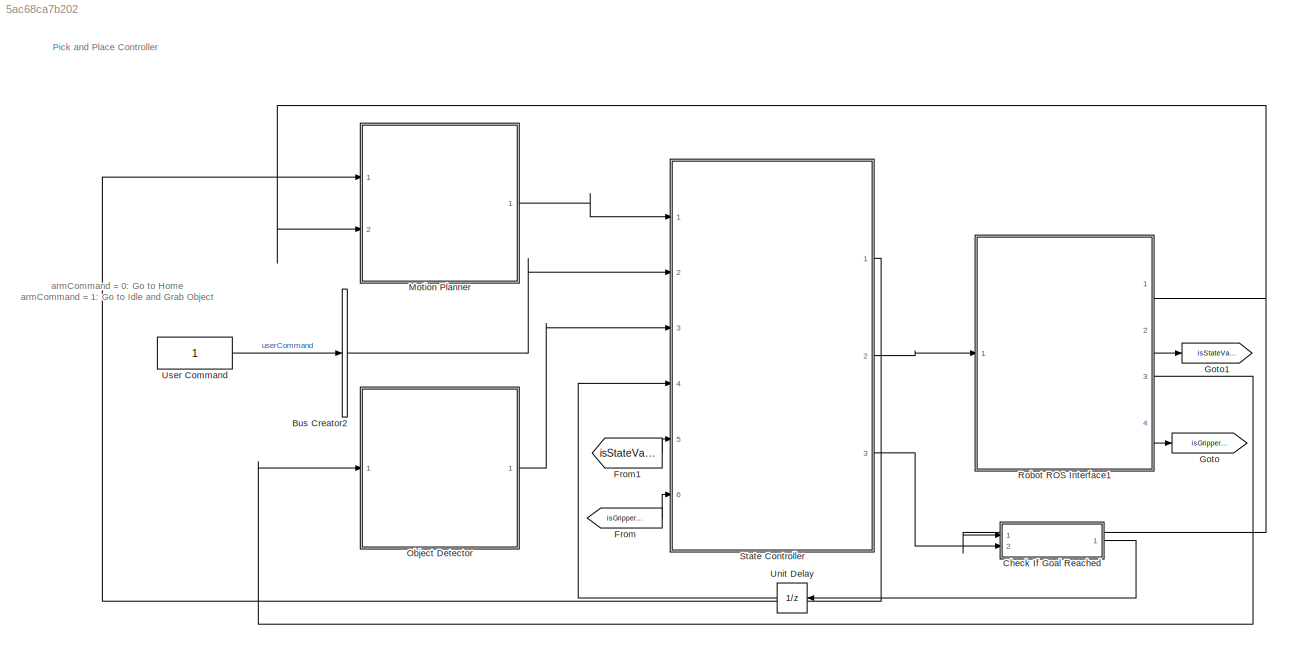
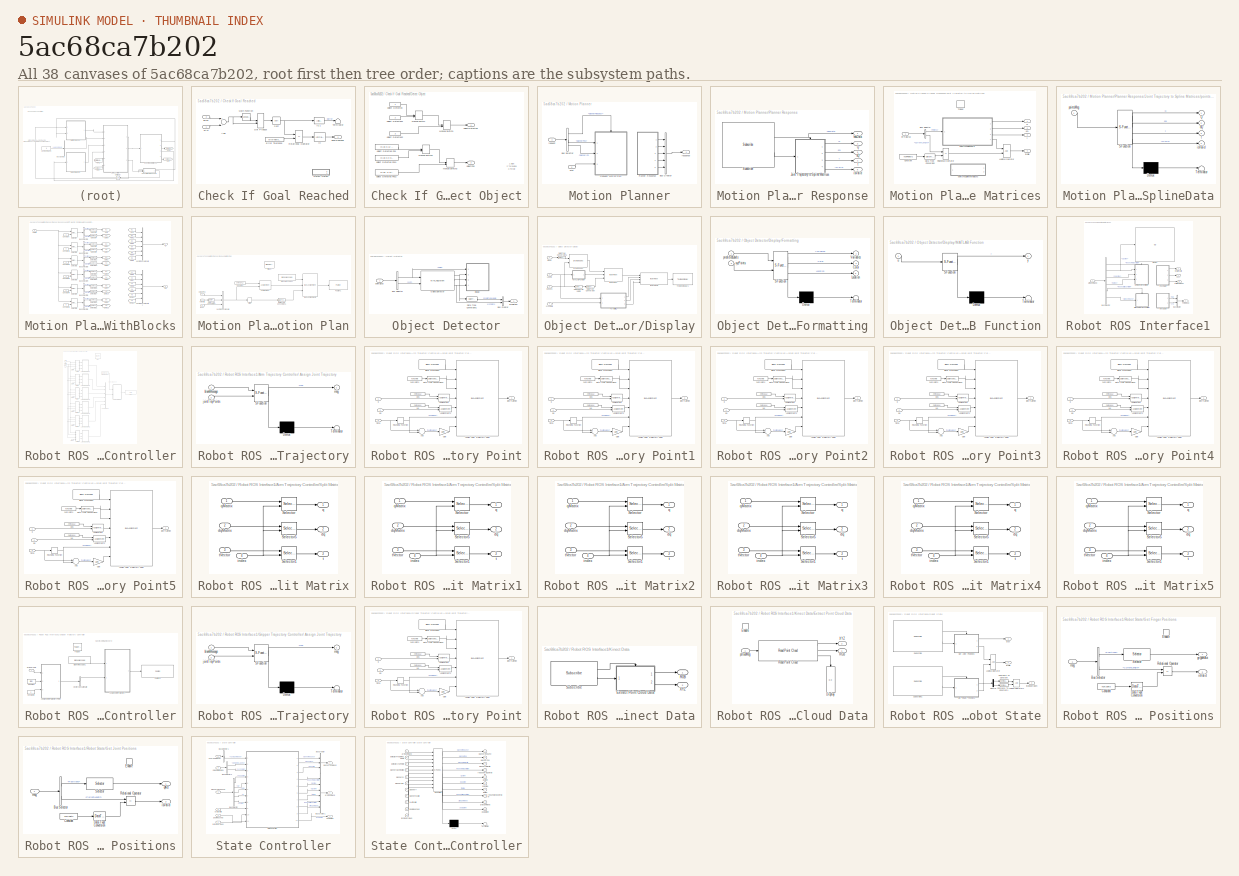
[diagram: thumbnail index - all 38 canvases of the model, root first then tree order]
MODEL slx_5ac68ca7b202
KIND model
CONFIG AbsTol = auto
CONFIG EnableMultiTasking = off
CONFIG FixedStep = 0.1
CONFIG MaxStep = auto
CONFIG MinStep = auto
CONFIG RelTol = 1e-3
CONFIG SampleTimeConstraint = Unconstrained
CONFIG Solver = ode3
CONFIG SolverName = ode3
CONFIG StartTime = 0
CONFIG StopTime = inf
WORKSPACE source: MAT-file member
WORKSPACE SL_ROS_VariableLengthArrays_MaxSizes: struct (value not decoded)
BLOCK [BusCreator] Bus Creator2
  DisplayOption = bar
  InheritFromInputs = on
  Inputs = 1
  Ports = [1, 1]
BLOCK [SubSystem] Check If Goal Reached
  Ports = [2, 1]
  RequestExecContextInheritance = off
BLOCK [Sum] Check If Goal Reached/Add
  InputSameDT = off
  Inputs = +-
  OutDataTypeStr = Inherit: Inherit via internal rule
  Ports = [2, 1]
  SaturateOnIntegerOverflow = off
BLOCK [SubSystem] Check If Goal Reached/Detect Object
  Commented = on
  Ports = [0, 2]
  RequestExecContextInheritance = off
BLOCK [ManualSwitch] Check If Goal Reached/Detect Object/Manual Switch
BLOCK [ManualSwitch] Check If Goal Reached/Detect Object/Manual Switch1
BLOCK [ManualSwitch] Check If Goal Reached/Detect Object/Manual Switch2
  CurrentSetting = 0
BLOCK [ManualSwitch] Check If Goal Reached/Detect Object/Manual Switch3
BLOCK [Constant] Check If Goal Reached/Detect Object/object Detected
  OutDataTypeStr = uint32
BLOCK [Constant] Check If Goal Reached/Detect Object/object Detected Pos
  OutDataTypeStr = double
  Value = [0.28 0.12 0.0]
BLOCK [Constant] Check If Goal Reached/Detect Object/object Detected Pos1
  OutDataTypeStr = double
  Value = [0.28 0.0 0.0]
BLOCK [Constant] Check If Goal Reached/Detect Object/object Detected Pos2
  OutDataTypeStr = double
  Value = [0.28 -0.12 0.0]
BLOCK [Constant] Check If Goal Reached/Detect Object/object Detected1
  OutDataTypeStr = uint32
  Value = 2
BLOCK [Constant] Check If Goal Reached/Detect Object/object Detected2
  OutDataTypeStr = uint32
  Value = 3
BLOCK [Outport] Check If Goal Reached/Detect Object/objectDetected
  IconDisplay = Port number
BLOCK [Outport] Check If Goal Reached/Detect Object/objectPos
  IconDisplay = Port number
  Port = 2
BLOCK [DotProduct] Check If Goal Reached/Dot Product
  OutDataTypeStr = Inherit: Inherit via internal rule
BLOCK [Constant] Check If Goal Reached/Error Tolerance
  Value = errorTolerance
BLOCK [InitialCondition] Check If Goal Reached/IC
  Value = 0
BLOCK [InitialCondition] Check If Goal Reached/IC1
  Value = -1000
BLOCK [Math] Check If Goal Reached/Math Function
  Operator = transpose
  Ports = [1, 1]
BLOCK [RelationalOperator] Check If Goal Reached/Relational Operator
  InputSameDT = off
  Operator = <=
  OutDataTypeStr = boolean
  Ports = [2, 1]
  RndMeth = Simplest
BLOCK [Sqrt] Check If Goal Reached/Sqrt
BLOCK [Terminator] Check If Goal Reached/Terminator
BLOCK [Outport] Check If Goal Reached/goalReached
  IconDisplay = Port number
BLOCK [Inport] Check If Goal Reached/qAct
  IconDisplay = Port number
BLOCK [Inport] Check If Goal Reached/qDes
  IconDisplay = Port number
  Port = 2
BLOCK [From] From
  GotoTag = isGripperOpen
BLOCK [From] From1
  GotoTag = isStateValid
BLOCK [Goto] Goto
  GotoTag = isGripperOpen
BLOCK [Goto] Goto1
  GotoTag = isStateValid
BLOCK [SubSystem] Motion Planner
  Ports = [2, 1]
  RequestExecContextInheritance = off
BLOCK [BusCreator] Motion Planner/Bus Creator
  DisplayOption = bar
  InheritFromInputs = on
  Inputs = 5
  Ports = [5, 1]
BLOCK [BusSelector] Motion Planner/Bus Selector
  OutputAsBus = off
  OutputSignals = plannerRequest,plannerPos,plannerID
  Ports = [1, 3]
BLOCK [SubSystem] Motion Planner/Planner Response
  Ports = [0, 5]
  RequestExecContextInheritance = off
BLOCK [SubSystem] Motion Planner/Planner Response/Joint Trajectory to Spline Matrices
  Ports = [1, 4, 0, 1]
  RequestExecContextInheritance = off
  TreatAsAtomicUnit = on
BLOCK [BusSelector] Motion Planner/Planner Response/Joint Trajectory to Spline Matrices/Bus Selector
  OutputAsBus = off
  OutputSignals = Points,Points_SL_Info.CurrentLength
  Ports = [1, 2]
BLOCK [Constant] Motion Planner/Planner Response/Joint Trajectory to Spline Matrices/Constant
  Value = numPoints+2
BLOCK [DataTypeConversion] Motion Planner/Planner Response/Joint Trajectory to Spline Matrices/Data Type Conversion
  OutDataTypeStr = uint32
  RndMeth = Floor
  SaturateOnIntegerOverflow = off
BLOCK [Logic] Motion Planner/Planner Response/Joint Trajectory to Spline Matrices/Logical Operator
  AllPortsSameDT = off
  OutDataTypeStr = boolean
  Ports = [2, 1]
BLOCK [Outport] Motion Planner/Planner Response/Joint Trajectory to Spline Matrices/Q
  IconDisplay = Port number
  InitialOutput = zeros(numJoints, numPoints+2)
BLOCK [RelationalOperator] Motion Planner/Planner Response/Joint Trajectory to Spline Matrices/Relational Operator
  InputSameDT = off
  Operator = ==
  OutDataTypeStr = boolean
  Ports = [2, 1]
  RndMeth = Simplest
BLOCK [TriggerPort] Motion Planner/Planner Response/Joint Trajectory to Spline Matrices/Trigger
  Ports = []
  StatesWhenEnabling = held
  VariantControl = Variant
BLOCK [Outport] Motion Planner/Planner Response/Joint Trajectory to Spline Matrices/dQ
  IconDisplay = Port number
  InitialOutput = zeros(numJoints, numPoints+2)
  Port = 2
BLOCK [Outport] Motion Planner/Planner Response/Joint Trajectory to Spline Matrices/isValid
  IconDisplay = Port number
  InitialOutput = [false]
  Port = 4
BLOCK [Inport] Motion Planner/Planner Response/Joint Trajectory to Spline Matrices/jntTrajMsg
  IconDisplay = Port number
BLOCK [SubSystem] Motion Planner/Planner Response/Joint Trajectory to Spline Matrices/pointsToSplineData
  ErrorFcn = Stateflow.Translate.translate
  PermitHierarchicalResolution = ExplicitOnly
  Ports = [1, 4]
  RequestExecContextInheritance = off
  SFBlockType = MATLAB Function
  TreatAsAtomicUnit = on
BLOCK [Demux] Motion Planner/Planner Response/Joint Trajectory to Spline Matrices/pointsToSplineData/ Demux 
  Outputs = 1
  Ports = [1, 1]
BLOCK [S-Function] Motion Planner/Planner Response/Joint Trajectory to Spline Matrices/pointsToSplineData/ SFunction 
  EnableBusSupport = on
  FunctionName = sf_sfun
  Parameters = numJoints,numPoints
  PortCounts = [1 5]
  Ports = [1, 5]
  SFcnIsStateOwnerBlock = off
  SFunctionDeploymentMode = off
  Tag = Stateflow S-Function mainController 2
BLOCK [Terminator] Motion Planner/Planner Response/Joint Trajectory to Spline Matrices/pointsToSplineData/ Terminator 
BLOCK [Outport] Motion Planner/Planner Response/Joint Trajectory to Spline Matrices/pointsToSplineData/Q
  IconDisplay = Port number
BLOCK [Outport] Motion Planner/Planner Response/Joint Trajectory to Spline Matrices/pointsToSplineData/dQ
  IconDisplay = Port number
  Port = 2
BLOCK [Outport] Motion Planner/Planner Response/Joint Trajectory to Spline Matrices/pointsToSplineData/isValid
  IconDisplay = Port number
  Port = 4
BLOCK [Inport] Motion Planner/Planner Response/Joint Trajectory to Spline Matrices/pointsToSplineData/pointsMsg
  IconDisplay = Port number
BLOCK [Outport] Motion Planner/Planner Response/Joint Trajectory to Spline Matrices/pointsToSplineData/t
  IconDisplay = Port number
  Port = 3
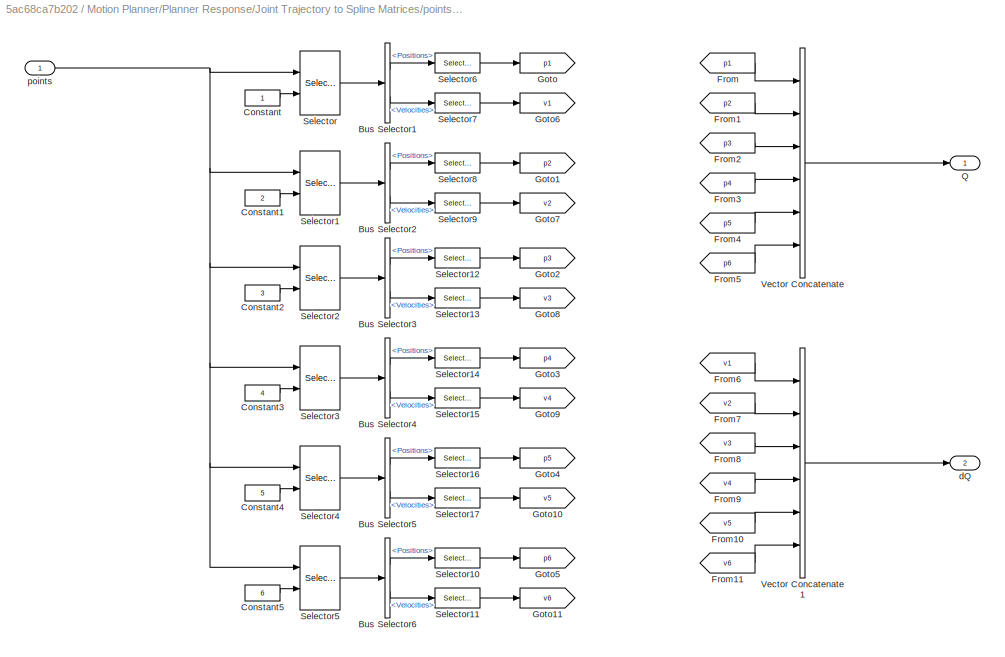
BLOCK [SubSystem] Motion Planner/Planner Response/Joint Trajectory to Spline Matrices/pointsToSplineWithBlocks
  Commented = on
  Ports = [1, 2]
  RequestExecContextInheritance = off
BLOCK [BusSelector] Motion Planner/Planner Response/Joint Trajectory to Spline Matrices/pointsToSplineWithBlocks/Bus Selector1
  OutputAsBus = off
  OutputSignals = Positions,Velocities
  Ports = [1, 2]
BLOCK [BusSelector] Motion Planner/Planner Response/Joint Trajectory to Spline Matrices/pointsToSplineWithBlocks/Bus Selector2
  OutputAsBus = off
  OutputSignals = Positions,Velocities
  Ports = [1, 2]
BLOCK [BusSelector] Motion Planner/Planner Response/Joint Trajectory to Spline Matrices/pointsToSplineWithBlocks/Bus Selector3
  OutputAsBus = off
  OutputSignals = Positions,Velocities
  Ports = [1, 2]
BLOCK [BusSelector] Motion Planner/Planner Response/Joint Trajectory to Spline Matrices/pointsToSplineWithBlocks/Bus Selector4
  OutputAsBus = off
  OutputSignals = Positions,Velocities
  Ports = [1, 2]
BLOCK [BusSelector] Motion Planner/Planner Response/Joint Trajectory to Spline Matrices/pointsToSplineWithBlocks/Bus Selector5
  OutputAsBus = off
  OutputSignals = Positions,Velocities
  Ports = [1, 2]
BLOCK [BusSelector] Motion Planner/Planner Response/Joint Trajectory to Spline Matrices/pointsToSplineWithBlocks/Bus Selector6
  OutputAsBus = off
  OutputSignals = Positions,Velocities
  Ports = [1, 2]
BLOCK [Constant] Motion Planner/Planner Response/Joint Trajectory to Spline Matrices/pointsToSplineWithBlocks/Constant
BLOCK [Constant] Motion Planner/Planner Response/Joint Trajectory to Spline Matrices/pointsToSplineWithBlocks/Constant1
  Value = 2
BLOCK [Constant] Motion Planner/Planner Response/Joint Trajectory to Spline Matrices/pointsToSplineWithBlocks/Constant2
  Value = 3
BLOCK [Constant] Motion Planner/Planner Response/Joint Trajectory to Spline Matrices/pointsToSplineWithBlocks/Constant3
  Value = 4
BLOCK [Constant] Motion Planner/Planner Response/Joint Trajectory to Spline Matrices/pointsToSplineWithBlocks/Constant4
  Value = 5
BLOCK [Constant] Motion Planner/Planner Response/Joint Trajectory to Spline Matrices/pointsToSplineWithBlocks/Constant5
  Value = 6
BLOCK [From] Motion Planner/Planner Response/Joint Trajectory to Spline Matrices/pointsToSplineWithBlocks/From
  GotoTag = p1
BLOCK [From] Motion Planner/Planner Response/Joint Trajectory to Spline Matrices/pointsToSplineWithBlocks/From1
  GotoTag = p2
BLOCK [From] Motion Planner/Planner Response/Joint Trajectory to Spline Matrices/pointsToSplineWithBlocks/From10
  GotoTag = v5
BLOCK [From] Motion Planner/Planner Response/Joint Trajectory to Spline Matrices/pointsToSplineWithBlocks/From11
  GotoTag = v6
BLOCK [From] Motion Planner/Planner Response/Joint Trajectory to Spline Matrices/pointsToSplineWithBlocks/From2
  GotoTag = p3
BLOCK [From] Motion Planner/Planner Response/Joint Trajectory to Spline Matrices/pointsToSplineWithBlocks/From3
  GotoTag = p4
BLOCK [From] Motion Planner/Planner Response/Joint Trajectory to Spline Matrices/pointsToSplineWithBlocks/From4
  GotoTag = p5
BLOCK [From] Motion Planner/Planner Response/Joint Trajectory to Spline Matrices/pointsToSplineWithBlocks/From5
  GotoTag = p6
BLOCK [From] Motion Planner/Planner Response/Joint Trajectory to Spline Matrices/pointsToSplineWithBlocks/From6
  GotoTag = v1
BLOCK [From] Motion Planner/Planner Response/Joint Trajectory to Spline Matrices/pointsToSplineWithBlocks/From7
  GotoTag = v2
BLOCK [From] Motion Planner/Planner Response/Joint Trajectory to Spline Matrices/pointsToSplineWithBlocks/From8
  GotoTag = v3
BLOCK [From] Motion Planner/Planner Response/Joint Trajectory to Spline Matrices/pointsToSplineWithBlocks/From9
  GotoTag = v4
BLOCK [Goto] Motion Planner/Planner Response/Joint Trajectory to Spline Matrices/pointsToSplineWithBlocks/Goto
  GotoTag = p1
BLOCK [Goto] Motion Planner/Planner Response/Joint Trajectory to Spline Matrices/pointsToSplineWithBlocks/Goto1
  GotoTag = p2
BLOCK [Goto] Motion Planner/Planner Response/Joint Trajectory to Spline Matrices/pointsToSplineWithBlocks/Goto10
  GotoTag = v5
BLOCK [Goto] Motion Planner/Planner Response/Joint Trajectory to Spline Matrices/pointsToSplineWithBlocks/Goto11
  GotoTag = v6
BLOCK [Goto] Motion Planner/Planner Response/Joint Trajectory to Spline Matrices/pointsToSplineWithBlocks/Goto2
  GotoTag = p3
BLOCK [Goto] Motion Planner/Planner Response/Joint Trajectory to Spline Matrices/pointsToSplineWithBlocks/Goto3
  GotoTag = p4
BLOCK [Goto] Motion Planner/Planner Response/Joint Trajectory to Spline Matrices/pointsToSplineWithBlocks/Goto4
  GotoTag = p5
BLOCK [Goto] Motion Planner/Planner Response/Joint Trajectory to Spline Matrices/pointsToSplineWithBlocks/Goto5
  GotoTag = p6
BLOCK [Goto] Motion Planner/Planner Response/Joint Trajectory to Spline Matrices/pointsToSplineWithBlocks/Goto6
  GotoTag = v1
BLOCK [Goto] Motion Planner/Planner Response/Joint Trajectory to Spline Matrices/pointsToSplineWithBlocks/Goto7
  GotoTag = v2
BLOCK [Goto] Motion Planner/Planner Response/Joint Trajectory to Spline Matrices/pointsToSplineWithBlocks/Goto8
  GotoTag = v3
BLOCK [Goto] Motion Planner/Planner Response/Joint Trajectory to Spline Matrices/pointsToSplineWithBlocks/Goto9
  GotoTag = v4
BLOCK [Outport] Motion Planner/Planner Response/Joint Trajectory to Spline Matrices/pointsToSplineWithBlocks/Q
  IconDisplay = Port number
BLOCK [Selector] Motion Planner/Planner Response/Joint Trajectory to Spline Matrices/pointsToSplineWithBlocks/Selector
  IndexOptions = Index vector (port)
  Indices = [1]
  InputPortWidth = 16
  OutputSizes = 1
  Ports = [2, 1]
BLOCK [Selector] Motion Planner/Planner Response/Joint Trajectory to Spline Matrices/pointsToSplineWithBlocks/Selector1
  IndexOptions = Index vector (port)
  Indices = [1]
  InputPortWidth = 16
  OutputSizes = 1
  Ports = [2, 1]
BLOCK [Selector] Motion Planner/Planner Response/Joint Trajectory to Spline Matrices/pointsToSplineWithBlocks/Selector10
  IndexOptions = Index vector (dialog)
  Indices = [1:numJoints]
  OutputSizes = 1
  Ports = [1, 1]
BLOCK [Selector] Motion Planner/Planner Response/Joint Trajectory to Spline Matrices/pointsToSplineWithBlocks/Selector11
  IndexOptions = Index vector (dialog)
  Indices = [1:numJoints]
  OutputSizes = 1
  Ports = [1, 1]
BLOCK [Selector] Motion Planner/Planner Response/Joint Trajectory to Spline Matrices/pointsToSplineWithBlocks/Selector12
  IndexOptions = Index vector (dialog)
  Indices = [1:numJoints]
  OutputSizes = 1
  Ports = [1, 1]
BLOCK [Selector] Motion Planner/Planner Response/Joint Trajectory to Spline Matrices/pointsToSplineWithBlocks/Selector13
  IndexOptions = Index vector (dialog)
  Indices = [1:numJoints]
  OutputSizes = 1
  Ports = [1, 1]
BLOCK [Selector] Motion Planner/Planner Response/Joint Trajectory to Spline Matrices/pointsToSplineWithBlocks/Selector14
  IndexOptions = Index vector (dialog)
  Indices = [1:numJoints]
  OutputSizes = 1
  Ports = [1, 1]
BLOCK [Selector] Motion Planner/Planner Response/Joint Trajectory to Spline Matrices/pointsToSplineWithBlocks/Selector15
  IndexOptions = Index vector (dialog)
  Indices = [1:numJoints]
  OutputSizes = 1
  Ports = [1, 1]
BLOCK [Selector] Motion Planner/Planner Response/Joint Trajectory to Spline Matrices/pointsToSplineWithBlocks/Selector16
  IndexOptions = Index vector (dialog)
  Indices = [1:numJoints]
  OutputSizes = 1
  Ports = [1, 1]
BLOCK [Selector] Motion Planner/Planner Response/Joint Trajectory to Spline Matrices/pointsToSplineWithBlocks/Selector17
  IndexOptions = Index vector (dialog)
  Indices = [1:numJoints]
  OutputSizes = 1
  Ports = [1, 1]
BLOCK [Selector] Motion Planner/Planner Response/Joint Trajectory to Spline Matrices/pointsToSplineWithBlocks/Selector2
  IndexOptions = Index vector (port)
  Indices = [1]
  InputPortWidth = 16
  OutputSizes = 1
  Ports = [2, 1]
BLOCK [Selector] Motion Planner/Planner Response/Joint Trajectory to Spline Matrices/pointsToSplineWithBlocks/Selector3
  IndexOptions = Index vector (port)
  Indices = [1]
  InputPortWidth = 16
  OutputSizes = 1
  Ports = [2, 1]
BLOCK [Selector] Motion Planner/Planner Response/Joint Trajectory to Spline Matrices/pointsToSplineWithBlocks/Selector4
  IndexOptions = Index vector (port)
  Indices = [1]
  InputPortWidth = 16
  OutputSizes = 1
  Ports = [2, 1]
BLOCK [Selector] Motion Planner/Planner Response/Joint Trajectory to Spline Matrices/pointsToSplineWithBlocks/Selector5
  IndexOptions = Index vector (port)
  Indices = [1]
  InputPortWidth = 16
  OutputSizes = 1
  Ports = [2, 1]
BLOCK [Selector] Motion Planner/Planner Response/Joint Trajectory to Spline Matrices/pointsToSplineWithBlocks/Selector6
  IndexOptions = Index vector (dialog)
  Indices = [1:numJoints]
  OutputSizes = 1
  Ports = [1, 1]
BLOCK [Selector] Motion Planner/Planner Response/Joint Trajectory to Spline Matrices/pointsToSplineWithBlocks/Selector7
  IndexOptions = Index vector (dialog)
  Indices = [1:numJoints]
  OutputSizes = 1
  Ports = [1, 1]
BLOCK [Selector] Motion Planner/Planner Response/Joint Trajectory to Spline Matrices/pointsToSplineWithBlocks/Selector8
  IndexOptions = Index vector (dialog)
  Indices = [1:numJoints]
  OutputSizes = 1
  Ports = [1, 1]
BLOCK [Selector] Motion Planner/Planner Response/Joint Trajectory to Spline Matrices/pointsToSplineWithBlocks/Selector9
  IndexOptions = Index vector (dialog)
  Indices = [1:numJoints]
  OutputSizes = 1
  Ports = [1, 1]
BLOCK [Concatenate] Motion Planner/Planner Response/Joint Trajectory to Spline Matrices/pointsToSplineWithBlocks/Vector Concatenate
  ConcatenateDimension = 2
  Mode = Multidimensional array
  NumInputs = 6
  Ports = [6, 1]
BLOCK [Concatenate] Motion Planner/Planner Response/Joint Trajectory to Spline Matrices/pointsToSplineWithBlocks/Vector Concatenate1
  ConcatenateDimension = 2
  Mode = Multidimensional array
  NumInputs = 6
  Ports = [6, 1]
BLOCK [Outport] Motion Planner/Planner Response/Joint Trajectory to Spline Matrices/pointsToSplineWithBlocks/dQ
  IconDisplay = Port number
  Port = 2
BLOCK [Inport] Motion Planner/Planner Response/Joint Trajectory to Spline Matrices/pointsToSplineWithBlocks/points
  IconDisplay = Port number
BLOCK [Outport] Motion Planner/Planner Response/Joint Trajectory to Spline Matrices/t
  IconDisplay = Port number
  InitialOutput = zeros(1, numPoints+2)
  Port = 3
BLOCK [Outport] Motion Planner/Planner Response/Q
  IconDisplay = Port number
  Port = 2
BLOCK [Reference] Motion Planner/Planner Response/Subscribe  REF=robotlib/Subscribe
  Ports = [0, 2]
  SourceBlock = robotlib/Subscribe
  SourceProductBaseCode = RO
  SourceProductName = Robotics System Toolbox
  SourceType = ROS Subscribe
BLOCK [Outport] Motion Planner/Planner Response/dQ
  IconDisplay = Port number
  Port = 3
BLOCK [Outport] Motion Planner/Planner Response/hasData
  IconDisplay = Port number
BLOCK [Outport] Motion Planner/Planner Response/isValid
  IconDisplay = Port number
  Port = 5
BLOCK [Outport] Motion Planner/Planner Response/t
  IconDisplay = Port number
  Port = 4
BLOCK [SubSystem] Motion Planner/Request Motion Plan
  Ports = [3, 0, 0, 1]
  RequestExecContextInheritance = off
  TreatAsAtomicUnit = on
BLOCK [Assignment] Motion Planner/Request Motion Plan/Assignment
  DiagnosticForDimensions = Warning
  IndexOptions = Index vector (dialog)
  Indices = 1:numJoints+4
  OutputSizes = 1
  Ports = [2, 1]
BLOCK [Reference] Motion Planner/Request Motion Plan/Blank Message1  REF=robotlib/Blank Message
  Ports = [0, 1]
  SourceBlock = robotlib/Blank Message
  SourceProductBaseCode = RO
  SourceProductName = Robotics System Toolbox
  SourceType = ROS Blank Message
BLOCK [BusAssignment] Motion Planner/Request Motion Plan/Bus Assignment1
  AssignedSignals = Position,Position_SL_Info.CurrentLength
  Ports = [3, 1]
BLOCK [Constant] Motion Planner/Request Motion Plan/Constant
  Value = zeros(16,1)
BLOCK [DataTypeConversion] Motion Planner/Request Motion Plan/Data Type Conversion
  OutDataTypeStr = double
  RndMeth = Floor
  SaturateOnIntegerOverflow = off
BLOCK [DataTypeConversion] Motion Planner/Request Motion Plan/Data Type Conversion1
  OutDataTypeStr = uint32
  RndMeth = Floor
  SaturateOnIntegerOverflow = off
BLOCK [Reference] Motion Planner/Request Motion Plan/Publish1  REF=robotlib/Publish
  Ports = [1]
  SourceBlock = robotlib/Publish
  SourceProductBaseCode = RO
  SourceProductName = Robotics System Toolbox
  SourceType = ROS Publish
BLOCK [TriggerPort] Motion Planner/Request Motion Plan/Trigger
  PortDimensions = 1
  Ports = []
  StatesWhenEnabling = held
  VariantControl = Variant
BLOCK [Concatenate] Motion Planner/Request Motion Plan/Vector Concatenate
  NumInputs = 3
  Ports = [3, 1]
BLOCK [Width] Motion Planner/Request Motion Plan/Width
BLOCK [Inport] Motion Planner/Request Motion Plan/objectID
  IconDisplay = Port number
  Port = 2
BLOCK [Inport] Motion Planner/Request Motion Plan/objectPos
  IconDisplay = Port number
BLOCK [Inport] Motion Planner/Request Motion Plan/qAct
  IconDisplay = Port number
  Port = 3
BLOCK [Inport] Motion Planner/qAct
  IconDisplay = Port number
  Port = 2
BLOCK [Inport] Motion Planner/request
  IconDisplay = Port number
BLOCK [Outport] Motion Planner/response
  IconDisplay = Port number
BLOCK [SubSystem] Object Detector
  Ports = [1, 1]
  RequestExecContextInheritance = off
BLOCK [BusCreator] Object Detector/Bus Creator
  DisplayOption = bar
  InheritFromInputs = on
  Inputs = 2
  Ports = [2, 1]
BLOCK [BusSelector] Object Detector/Bus Selector
  OutputAsBus = off
  OutputSignals = RGB,XYZ
  Ports = [1, 2]
BLOCK [DataTypeConversion] Object Detector/Data Type Conversion1
  OutDataTypeStr = uint32
  RndMeth = Floor
  SaturateOnIntegerOverflow = off
BLOCK [SubSystem] Object Detector/Display
  Ports = [4]
  RequestExecContextInheritance = off
BLOCK [DataTypeConversion] Object Detector/Display/Data Type Conversion
  OutDataTypeStr = int32
  RndMeth = Floor
  SaturateOnIntegerOverflow = off
BLOCK [DataTypeConversion] Object Detector/Display/Data Type Conversion1
  OutDataTypeStr = single
  RndMeth = Floor
  SaturateOnIntegerOverflow = off
BLOCK [Reference] Object Detector/Display/Draw Shapes  REF=visiontextngfix/Draw Shapes
  Ports = [2, 1]
  SourceBlock = visiontextngfix/Draw Shapes
  SourceProductBaseCode = VP
  SourceProductName = Computer Vision Toolbox
  SourceType = Draw Shapes
BLOCK [SubSystem] Object Detector/Display/Formatting
  ErrorFcn = Stateflow.Translate.translate
  PermitHierarchicalResolution = ExplicitOnly
  Ports = [2, 3]
  RequestExecContextInheritance = off
  SFBlockType = MATLAB Function
  TreatAsAtomicUnit = on
BLOCK [Demux] Object Detector/Display/Formatting/ Demux 
  Outputs = 1
  Ports = [1, 1]
BLOCK [S-Function] Object Detector/Display/Formatting/ SFunction 
  EnableBusSupport = on
  FunctionName = sf_sfun
  PortCounts = [2 4]
  Ports = [2, 4]
  SFcnIsStateOwnerBlock = off
  SFunctionDeploymentMode = off
  Tag = Stateflow S-Function mainController 6
BLOCK [Terminator] Object Detector/Display/Formatting/ Terminator 
BLOCK [Outport] Object Detector/Display/Formatting/Color
  IconDisplay = Port number
  Port = 2
BLOCK [Outport] Object Detector/Display/Formatting/Location
  IconDisplay = Port number
  Port = 3
BLOCK [Outport] Object Detector/Display/Formatting/Variables
  IconDisplay = Port number
BLOCK [Inport] Object Detector/Display/Formatting/predictedLabels
  IconDisplay = Port number
BLOCK [Inport] Object Detector/Display/Formatting/xyzPoints
  IconDisplay = Port number
  Port = 2
BLOCK [Inport] Object Detector/Display/Image
  IconDisplay = Port number
BLOCK [Reference] Object Detector/Display/Insert Text  REF=visiontextngfix/Insert Text
  Ports = [3, 1]
  SourceBlock = visiontextngfix/Insert Text
  SourceProductBaseCode = VP
  SourceProductName = Computer Vision Toolbox
  SourceType = Insert Text
BLOCK [Reference] Object Detector/Display/Insert Text1  REF=visiontextngfix/Insert Text
  Ports = [4, 1]
  SourceBlock = visiontextngfix/Insert Text
  SourceProductBaseCode = VP
  SourceProductName = Computer Vision Toolbox
  SourceType = Insert Text
BLOCK [Inport] Object Detector/Display/Labels
  IconDisplay = Port number
  Port = 2
BLOCK [SubSystem] Object Detector/Display/MATLAB Function
  ErrorFcn = Stateflow.Translate.translate
  PermitHierarchicalResolution = ExplicitOnly
  Ports = [1, 1]
  RequestExecContextInheritance = off
  SFBlockType = MATLAB Function
  TreatAsAtomicUnit = on
BLOCK [Demux] Object Detector/Display/MATLAB Function/ Demux 
  Outputs = 1
  Ports = [1, 1]
BLOCK [S-Function] Object Detector/Display/MATLAB Function/ SFunction 
  EnableBusSupport = on
  FunctionName = sf_sfun
  PortCounts = [1 2]
  Ports = [1, 2]
  SFcnIsStateOwnerBlock = off
  SFunctionDeploymentMode = off
  Tag = Stateflow S-Function mainController 7
BLOCK [Terminator] Object Detector/Display/MATLAB Function/ Terminator 
BLOCK [Inport] Object Detector/Display/MATLAB Function/u
  IconDisplay = Port number
BLOCK [Outport] Object Detector/Display/MATLAB Function/y
  IconDisplay = Port number
BLOCK [Selector] Object Detector/Display/Select Top-left points
  IndexOptions = Select all,Index vector (dialog)
  Indices = [1 3],1:2
  InputPortWidth = 3
  NumberOfDimensions = 2
  OutputSizes = 1,1
  Ports = [1, 1]
BLOCK [Reference] Object Detector/Display/To Video Display1  REF=visionsinks/To Video Display
  Ports = [1]
  SourceBlock = visionsinks/To Video Display
  SourceProductBaseCode = VP
  SourceProductName = Computer Vision Toolbox
  SourceType = To Video Display
BLOCK [Inport] Object Detector/Display/bboxes
  IconDisplay = Port number
  Port = 3
BLOCK [Inport] Object Detector/Display/xyzPoints
  IconDisplay = Port number
  Port = 4
BLOCK [MATLABSystem] Object Detector/ObjectDetector
  MaskDisplay = disp('ObjectDetector');\nport_label('input',1,'im');\nport_label('input',2,'pts');\nport_label('output',1,'predictedLabels');\nport_label('output',2,'bboxes');\nport_label('output',3,'xyzPoints');
  MaskType = ObjectDetector
  Ports = [2, 3]
  SimulateUsing = Interpreted execution
  System = ObjectDetector
  roi = [ 20, 240, 600, 240 ]
  tform = b_T_k
BLOCK [Inport] Object Detector/pointCloud
  IconDisplay = Port number
BLOCK [Outport] Object Detector/prediction
  IconDisplay = Port number
BLOCK [SubSystem] Robot ROS Interface1
  Ports = [1, 4]
  RequestExecContextInheritance = off
BLOCK [SubSystem] Robot ROS Interface1/Arm Trajectory Controller
  Ports = [3, 0, 0, 1]
  RequestExecContextInheritance = off
BLOCK [SubSystem] Robot ROS Interface1/Arm Trajectory Controller/ Assign Joint Trajectory
  ErrorFcn = Stateflow.Translate.translate
  PermitHierarchicalResolution = ExplicitOnly
  Ports = [2, 1]
  RequestExecContextInheritance = off
  SFBlockType = MATLAB Function
  TreatAsAtomicUnit = on
BLOCK [Demux] Robot ROS Interface1/Arm Trajectory Controller/ Assign Joint Trajectory/ Demux 
  Outputs = 1
  Ports = [1, 1]
BLOCK [S-Function] Robot ROS Interface1/Arm Trajectory Controller/ Assign Joint Trajectory/ SFunction 
  EnableBusSupport = on
  FunctionName = sf_sfun
  PortCounts = [2 2]
  Ports = [2, 2]
  SFcnIsStateOwnerBlock = off
  SFunctionDeploymentMode = off
  Tag = Stateflow S-Function mainController 8
BLOCK [Terminator] Robot ROS Interface1/Arm Trajectory Controller/ Assign Joint Trajectory/ Terminator 
BLOCK [Inport] Robot ROS Interface1/Arm Trajectory Controller/ Assign Joint Trajectory/blankMessage
  IconDisplay = Port number
BLOCK [Inport] Robot ROS Interface1/Arm Trajectory Controller/ Assign Joint Trajectory/jointTrajPoints
  IconDisplay = Port number
  Port = 2
BLOCK [Outport] Robot ROS Interface1/Arm Trajectory Controller/ Assign Joint Trajectory/msg
  IconDisplay = Port number
BLOCK [SubSystem] Robot ROS Interface1/Arm Trajectory Controller/Assign Joint Trajectory Point
  Ports = [3, 1]
  RequestExecContextInheritance = off
BLOCK [Sum] Robot ROS Interface1/Arm Trajectory Controller/Assign Joint Trajectory Point/Add
  InputSameDT = off
  Inputs = +-
  OutDataTypeStr = Inherit: Inherit via internal rule
  Ports = [2, 1]
  SaturateOnIntegerOverflow = off
BLOCK [BusAssignment] Robot ROS Interface1/Arm Trajectory Controller/Assign Joint Trajectory Point/Assign Joint Trajectory Point
  AssignedSignals = Positions_SL_Info.CurrentLength,Velocities_SL_Info.CurrentLength,Positions,Velocities,TimeFromStart.Sec,TimeFromStart.Nsec
  Ports = [7, 1]
BLOCK [Assignment] Robot ROS Interface1/Arm Trajectory Controller/Assign Joint Trajectory Point/Assignment
  DiagnosticForDimensions = Warning
  IndexOptions = Index vector (dialog)
  Indices = 1:numJoints
  OutputSizes = 1
  Ports = [2, 1]
BLOCK [Assignment] Robot ROS Interface1/Arm Trajectory Controller/Assign Joint Trajectory Point/Assignment1
  DiagnosticForDimensions = Warning
  IndexOptions = Index vector (dialog)
  Indices = 1:numJoints
  OutputSizes = 1
  Ports = [2, 1]
BLOCK [Reference] Robot ROS Interface1/Arm Trajectory Controller/Assign Joint Trajectory Point/Blank Message2  REF=robotlib/Blank Message
  Ports = [0, 1]
  SourceBlock = robotlib/Blank Message
  SourceProductBaseCode = RO
  SourceProductName = Robotics System Toolbox
  SourceType = ROS Blank Message
BLOCK [DataTypeConversion] Robot ROS Interface1/Arm Trajectory Controller/Assign Joint Trajectory Point/Data Type Conversion2
  OutDataTypeStr = uint32
  RndMeth = Floor
  SaturateOnIntegerOverflow = off
BLOCK [Gain] Robot ROS Interface1/Arm Trajectory Controller/Assign Joint Trajectory Point/Gain
  Gain = 1e9
  OutDataTypeStr = Inherit: Inherit via internal rule
  ParamDataTypeStr = Inherit: Inherit via internal rule
  SaturateOnIntegerOverflow = off
BLOCK [Rounding] Robot ROS Interface1/Arm Trajectory Controller/Assign Joint Trajectory Point/Rounding Function
BLOCK [Inport] Robot ROS Interface1/Arm Trajectory Controller/Assign Joint Trajectory Point/dq
  IconDisplay = Port number
  Port = 2
BLOCK [Outport] Robot ROS Interface1/Arm Trajectory Controller/Assign Joint Trajectory Point/jointTrajPoint
  IconDisplay = Port number
BLOCK [Constant] Robot ROS Interface1/Arm Trajectory Controller/Assign Joint Trajectory Point/numJoints
  Value = numJoints
BLOCK [Constant] Robot ROS Interface1/Arm Trajectory Controller/Assign Joint Trajectory Point/pos
  Value = zeros(16,1)
BLOCK [Inport] Robot ROS Interface1/Arm Trajectory Controller/Assign Joint Trajectory Point/q
  IconDisplay = Port number
BLOCK [Inport] Robot ROS Interface1/Arm Trajectory Controller/Assign Joint Trajectory Point/time
  IconDisplay = Port number
  Port = 3
BLOCK [Constant] Robot ROS Interface1/Arm Trajectory Controller/Assign Joint Trajectory Point/vel
  Value = zeros(16,1)
BLOCK [SubSystem] Robot ROS Interface1/Arm Trajectory Controller/Assign Joint Trajectory Point1
  Ports = [3, 1]
  RequestExecContextInheritance = off
BLOCK [Sum] Robot ROS Interface1/Arm Trajectory Controller/Assign Joint Trajectory Point1/Add
  InputSameDT = off
  Inputs = +-
  OutDataTypeStr = Inherit: Inherit via internal rule
  Ports = [2, 1]
  SaturateOnIntegerOverflow = off
BLOCK [BusAssignment] Robot ROS Interface1/Arm Trajectory Controller/Assign Joint Trajectory Point1/Assign Joint Trajectory Point
  AssignedSignals = Positions_SL_Info.CurrentLength,Velocities_SL_Info.CurrentLength,Positions,Velocities,TimeFromStart.Sec,TimeFromStart.Nsec
  Ports = [7, 1]
BLOCK [Assignment] Robot ROS Interface1/Arm Trajectory Controller/Assign Joint Trajectory Point1/Assignment
  DiagnosticForDimensions = Warning
  IndexOptions = Index vector (dialog)
  Indices = 1:numJoints
  OutputSizes = 1
  Ports = [2, 1]
BLOCK [Assignment] Robot ROS Interface1/Arm Trajectory Controller/Assign Joint Trajectory Point1/Assignment1
  DiagnosticForDimensions = Warning
  IndexOptions = Index vector (dialog)
  Indices = 1:numJoints
  OutputSizes = 1
  Ports = [2, 1]
BLOCK [Reference] Robot ROS Interface1/Arm Trajectory Controller/Assign Joint Trajectory Point1/Blank Message2  REF=robotlib/Blank Message
  Ports = [0, 1]
  SourceBlock = robotlib/Blank Message
  SourceProductBaseCode = RO
  SourceProductName = Robotics System Toolbox
  SourceType = ROS Blank Message
BLOCK [DataTypeConversion] Robot ROS Interface1/Arm Trajectory Controller/Assign Joint Trajectory Point1/Data Type Conversion2
  OutDataTypeStr = uint32
  RndMeth = Floor
  SaturateOnIntegerOverflow = off
BLOCK [Gain] Robot ROS Interface1/Arm Trajectory Controller/Assign Joint Trajectory Point1/Gain
  Gain = 1e9
  OutDataTypeStr = Inherit: Inherit via internal rule
  ParamDataTypeStr = Inherit: Inherit via internal rule
  SaturateOnIntegerOverflow = off
BLOCK [Rounding] Robot ROS Interface1/Arm Trajectory Controller/Assign Joint Trajectory Point1/Rounding Function
BLOCK [Inport] Robot ROS Interface1/Arm Trajectory Controller/Assign Joint Trajectory Point1/dq
  IconDisplay = Port number
  Port = 2
BLOCK [Outport] Robot ROS Interface1/Arm Trajectory Controller/Assign Joint Trajectory Point1/jointTrajPoint
  IconDisplay = Port number
BLOCK [Constant] Robot ROS Interface1/Arm Trajectory Controller/Assign Joint Trajectory Point1/numJoints
  Value = numJoints
BLOCK [Constant] Robot ROS Interface1/Arm Trajectory Controller/Assign Joint Trajectory Point1/pos
  Value = zeros(16,1)
BLOCK [Inport] Robot ROS Interface1/Arm Trajectory Controller/Assign Joint Trajectory Point1/q
  IconDisplay = Port number
BLOCK [Inport] Robot ROS Interface1/Arm Trajectory Controller/Assign Joint Trajectory Point1/time
  IconDisplay = Port number
  Port = 3
BLOCK [Constant] Robot ROS Interface1/Arm Trajectory Controller/Assign Joint Trajectory Point1/vel
  Value = zeros(16,1)
BLOCK [SubSystem] Robot ROS Interface1/Arm Trajectory Controller/Assign Joint Trajectory Point2
  Ports = [3, 1]
  RequestExecContextInheritance = off
BLOCK [Sum] Robot ROS Interface1/Arm Trajectory Controller/Assign Joint Trajectory Point2/Add
  InputSameDT = off
  Inputs = +-
  OutDataTypeStr = Inherit: Inherit via internal rule
  Ports = [2, 1]
  SaturateOnIntegerOverflow = off
BLOCK [BusAssignment] Robot ROS Interface1/Arm Trajectory Controller/Assign Joint Trajectory Point2/Assign Joint Trajectory Point
  AssignedSignals = Positions_SL_Info.CurrentLength,Velocities_SL_Info.CurrentLength,Positions,Velocities,TimeFromStart.Sec,TimeFromStart.Nsec
  Ports = [7, 1]
BLOCK [Assignment] Robot ROS Interface1/Arm Trajectory Controller/Assign Joint Trajectory Point2/Assignment
  DiagnosticForDimensions = Warning
  IndexOptions = Index vector (dialog)
  Indices = 1:numJoints
  OutputSizes = 1
  Ports = [2, 1]
BLOCK [Assignment] Robot ROS Interface1/Arm Trajectory Controller/Assign Joint Trajectory Point2/Assignment1
  DiagnosticForDimensions = Warning
  IndexOptions = Index vector (dialog)
  Indices = 1:numJoints
  OutputSizes = 1
  Ports = [2, 1]
BLOCK [Reference] Robot ROS Interface1/Arm Trajectory Controller/Assign Joint Trajectory Point2/Blank Message2  REF=robotlib/Blank Message
  Ports = [0, 1]
  SourceBlock = robotlib/Blank Message
  SourceProductBaseCode = RO
  SourceProductName = Robotics System Toolbox
  SourceType = ROS Blank Message
BLOCK [DataTypeConversion] Robot ROS Interface1/Arm Trajectory Controller/Assign Joint Trajectory Point2/Data Type Conversion2
  OutDataTypeStr = uint32
  RndMeth = Floor
  SaturateOnIntegerOverflow = off
BLOCK [Gain] Robot ROS Interface1/Arm Trajectory Controller/Assign Joint Trajectory Point2/Gain
  Gain = 1e9
  OutDataTypeStr = Inherit: Inherit via internal rule
  ParamDataTypeStr = Inherit: Inherit via internal rule
  SaturateOnIntegerOverflow = off
BLOCK [Rounding] Robot ROS Interface1/Arm Trajectory Controller/Assign Joint Trajectory Point2/Rounding Function
BLOCK [Inport] Robot ROS Interface1/Arm Trajectory Controller/Assign Joint Trajectory Point2/dq
  IconDisplay = Port number
  Port = 2
BLOCK [Outport] Robot ROS Interface1/Arm Trajectory Controller/Assign Joint Trajectory Point2/jointTrajPoint
  IconDisplay = Port number
BLOCK [Constant] Robot ROS Interface1/Arm Trajectory Controller/Assign Joint Trajectory Point2/numJoints
  Value = numJoints
BLOCK [Constant] Robot ROS Interface1/Arm Trajectory Controller/Assign Joint Trajectory Point2/pos
  Value = zeros(16,1)
BLOCK [Inport] Robot ROS Interface1/Arm Trajectory Controller/Assign Joint Trajectory Point2/q
  IconDisplay = Port number
BLOCK [Inport] Robot ROS Interface1/Arm Trajectory Controller/Assign Joint Trajectory Point2/time
  IconDisplay = Port number
  Port = 3
BLOCK [Constant] Robot ROS Interface1/Arm Trajectory Controller/Assign Joint Trajectory Point2/vel
  Value = zeros(16,1)
BLOCK [SubSystem] Robot ROS Interface1/Arm Trajectory Controller/Assign Joint Trajectory Point3
  Ports = [3, 1]
  RequestExecContextInheritance = off
BLOCK [Sum] Robot ROS Interface1/Arm Trajectory Controller/Assign Joint Trajectory Point3/Add
  InputSameDT = off
  Inputs = +-
  OutDataTypeStr = Inherit: Inherit via internal rule
  Ports = [2, 1]
  SaturateOnIntegerOverflow = off
BLOCK [BusAssignment] Robot ROS Interface1/Arm Trajectory Controller/Assign Joint Trajectory Point3/Assign Joint Trajectory Point
  AssignedSignals = Positions_SL_Info.CurrentLength,Velocities_SL_Info.CurrentLength,Positions,Velocities,TimeFromStart.Sec,TimeFromStart.Nsec
  Ports = [7, 1]
BLOCK [Assignment] Robot ROS Interface1/Arm Trajectory Controller/Assign Joint Trajectory Point3/Assignment
  DiagnosticForDimensions = Warning
  IndexOptions = Index vector (dialog)
  Indices = 1:numJoints
  OutputSizes = 1
  Ports = [2, 1]
BLOCK [Assignment] Robot ROS Interface1/Arm Trajectory Controller/Assign Joint Trajectory Point3/Assignment1
  DiagnosticForDimensions = Warning
  IndexOptions = Index vector (dialog)
  Indices = 1:numJoints
  OutputSizes = 1
  Ports = [2, 1]
BLOCK [Reference] Robot ROS Interface1/Arm Trajectory Controller/Assign Joint Trajectory Point3/Blank Message2  REF=robotlib/Blank Message
  Ports = [0, 1]
  SourceBlock = robotlib/Blank Message
  SourceProductBaseCode = RO
  SourceProductName = Robotics System Toolbox
  SourceType = ROS Blank Message
BLOCK [DataTypeConversion] Robot ROS Interface1/Arm Trajectory Controller/Assign Joint Trajectory Point3/Data Type Conversion2
  OutDataTypeStr = uint32
  RndMeth = Floor
  SaturateOnIntegerOverflow = off
BLOCK [Gain] Robot ROS Interface1/Arm Trajectory Controller/Assign Joint Trajectory Point3/Gain
  Gain = 1e9
  OutDataTypeStr = Inherit: Inherit via internal rule
  ParamDataTypeStr = Inherit: Inherit via internal rule
  SaturateOnIntegerOverflow = off
BLOCK [Rounding] Robot ROS Interface1/Arm Trajectory Controller/Assign Joint Trajectory Point3/Rounding Function
BLOCK [Inport] Robot ROS Interface1/Arm Trajectory Controller/Assign Joint Trajectory Point3/dq
  IconDisplay = Port number
  Port = 2
BLOCK [Outport] Robot ROS Interface1/Arm Trajectory Controller/Assign Joint Trajectory Point3/jointTrajPoint
  IconDisplay = Port number
BLOCK [Constant] Robot ROS Interface1/Arm Trajectory Controller/Assign Joint Trajectory Point3/numJoints
  Value = numJoints
BLOCK [Constant] Robot ROS Interface1/Arm Trajectory Controller/Assign Joint Trajectory Point3/pos
  Value = zeros(16,1)
BLOCK [Inport] Robot ROS Interface1/Arm Trajectory Controller/Assign Joint Trajectory Point3/q
  IconDisplay = Port number
BLOCK [Inport] Robot ROS Interface1/Arm Trajectory Controller/Assign Joint Trajectory Point3/time
  IconDisplay = Port number
  Port = 3
BLOCK [Constant] Robot ROS Interface1/Arm Trajectory Controller/Assign Joint Trajectory Point3/vel
  Value = zeros(16,1)
BLOCK [SubSystem] Robot ROS Interface1/Arm Trajectory Controller/Assign Joint Trajectory Point4
  Ports = [3, 1]
  RequestExecContextInheritance = off
BLOCK [Sum] Robot ROS Interface1/Arm Trajectory Controller/Assign Joint Trajectory Point4/Add
  InputSameDT = off
  Inputs = +-
  OutDataTypeStr = Inherit: Inherit via internal rule
  Ports = [2, 1]
  SaturateOnIntegerOverflow = off
BLOCK [BusAssignment] Robot ROS Interface1/Arm Trajectory Controller/Assign Joint Trajectory Point4/Assign Joint Trajectory Point
  AssignedSignals = Positions_SL_Info.CurrentLength,Velocities_SL_Info.CurrentLength,Positions,Velocities,TimeFromStart.Sec,TimeFromStart.Nsec
  Ports = [7, 1]
BLOCK [Assignment] Robot ROS Interface1/Arm Trajectory Controller/Assign Joint Trajectory Point4/Assignment
  DiagnosticForDimensions = Warning
  IndexOptions = Index vector (dialog)
  Indices = 1:numJoints
  OutputSizes = 1
  Ports = [2, 1]
BLOCK [Assignment] Robot ROS Interface1/Arm Trajectory Controller/Assign Joint Trajectory Point4/Assignment1
  DiagnosticForDimensions = Warning
  IndexOptions = Index vector (dialog)
  Indices = 1:numJoints
  OutputSizes = 1
  Ports = [2, 1]
BLOCK [Reference] Robot ROS Interface1/Arm Trajectory Controller/Assign Joint Trajectory Point4/Blank Message2  REF=robotlib/Blank Message
  Ports = [0, 1]
  SourceBlock = robotlib/Blank Message
  SourceProductBaseCode = RO
  SourceProductName = Robotics System Toolbox
  SourceType = ROS Blank Message
BLOCK [DataTypeConversion] Robot ROS Interface1/Arm Trajectory Controller/Assign Joint Trajectory Point4/Data Type Conversion2
  OutDataTypeStr = uint32
  RndMeth = Floor
  SaturateOnIntegerOverflow = off
BLOCK [Gain] Robot ROS Interface1/Arm Trajectory Controller/Assign Joint Trajectory Point4/Gain
  Gain = 1e9
  OutDataTypeStr = Inherit: Inherit via internal rule
  ParamDataTypeStr = Inherit: Inherit via internal rule
  SaturateOnIntegerOverflow = off
BLOCK [Rounding] Robot ROS Interface1/Arm Trajectory Controller/Assign Joint Trajectory Point4/Rounding Function
BLOCK [Inport] Robot ROS Interface1/Arm Trajectory Controller/Assign Joint Trajectory Point4/dq
  IconDisplay = Port number
  Port = 2
BLOCK [Outport] Robot ROS Interface1/Arm Trajectory Controller/Assign Joint Trajectory Point4/jointTrajPoint
  IconDisplay = Port number
BLOCK [Constant] Robot ROS Interface1/Arm Trajectory Controller/Assign Joint Trajectory Point4/numJoints
  Value = numJoints
BLOCK [Constant] Robot ROS Interface1/Arm Trajectory Controller/Assign Joint Trajectory Point4/pos
  Value = zeros(16,1)
BLOCK [Inport] Robot ROS Interface1/Arm Trajectory Controller/Assign Joint Trajectory Point4/q
  IconDisplay = Port number
BLOCK [Inport] Robot ROS Interface1/Arm Trajectory Controller/Assign Joint Trajectory Point4/time
  IconDisplay = Port number
  Port = 3
BLOCK [Constant] Robot ROS Interface1/Arm Trajectory Controller/Assign Joint Trajectory Point4/vel
  Value = zeros(16,1)
BLOCK [SubSystem] Robot ROS Interface1/Arm Trajectory Controller/Assign Joint Trajectory Point5
  Ports = [3, 1]
  RequestExecContextInheritance = off
BLOCK [Sum] Robot ROS Interface1/Arm Trajectory Controller/Assign Joint Trajectory Point5/Add
  InputSameDT = off
  Inputs = +-
  OutDataTypeStr = Inherit: Inherit via internal rule
  Ports = [2, 1]
  SaturateOnIntegerOverflow = off
BLOCK [BusAssignment] Robot ROS Interface1/Arm Trajectory Controller/Assign Joint Trajectory Point5/Assign Joint Trajectory Point
  AssignedSignals = Positions_SL_Info.CurrentLength,Velocities_SL_Info.CurrentLength,Positions,Velocities,TimeFromStart.Sec,TimeFromStart.Nsec
  Ports = [7, 1]
BLOCK [Assignment] Robot ROS Interface1/Arm Trajectory Controller/Assign Joint Trajectory Point5/Assignment
  DiagnosticForDimensions = Warning
  IndexOptions = Index vector (dialog)
  Indices = 1:numJoints
  OutputSizes = 1
  Ports = [2, 1]
BLOCK [Assignment] Robot ROS Interface1/Arm Trajectory Controller/Assign Joint Trajectory Point5/Assignment1
  DiagnosticForDimensions = Warning
  IndexOptions = Index vector (dialog)
  Indices = 1:numJoints
  OutputSizes = 1
  Ports = [2, 1]
BLOCK [Reference] Robot ROS Interface1/Arm Trajectory Controller/Assign Joint Trajectory Point5/Blank Message2  REF=robotlib/Blank Message
  Ports = [0, 1]
  SourceBlock = robotlib/Blank Message
  SourceProductBaseCode = RO
  SourceProductName = Robotics System Toolbox
  SourceType = ROS Blank Message
BLOCK [DataTypeConversion] Robot ROS Interface1/Arm Trajectory Controller/Assign Joint Trajectory Point5/Data Type Conversion2
  OutDataTypeStr = uint32
  RndMeth = Floor
  SaturateOnIntegerOverflow = off
BLOCK [Gain] Robot ROS Interface1/Arm Trajectory Controller/Assign Joint Trajectory Point5/Gain
  Gain = 1e9
  OutDataTypeStr = Inherit: Inherit via internal rule
  ParamDataTypeStr = Inherit: Inherit via internal rule
  SaturateOnIntegerOverflow = off
BLOCK [Rounding] Robot ROS Interface1/Arm Trajectory Controller/Assign Joint Trajectory Point5/Rounding Function
BLOCK [Inport] Robot ROS Interface1/Arm Trajectory Controller/Assign Joint Trajectory Point5/dq
  IconDisplay = Port number
  Port = 2
BLOCK [Outport] Robot ROS Interface1/Arm Trajectory Controller/Assign Joint Trajectory Point5/jointTrajPoint
  IconDisplay = Port number
BLOCK [Constant] Robot ROS Interface1/Arm Trajectory Controller/Assign Joint Trajectory Point5/numJoints
  Value = numJoints
BLOCK [Constant] Robot ROS Interface1/Arm Trajectory Controller/Assign Joint Trajectory Point5/pos
  Value = zeros(16,1)
BLOCK [Inport] Robot ROS Interface1/Arm Trajectory Controller/Assign Joint Trajectory Point5/q
  IconDisplay = Port number
BLOCK [Inport] Robot ROS Interface1/Arm Trajectory Controller/Assign Joint Trajectory Point5/time
  IconDisplay = Port number
  Port = 3
BLOCK [Constant] Robot ROS Interface1/Arm Trajectory Controller/Assign Joint Trajectory Point5/vel
  Value = zeros(16,1)
BLOCK [Reference] Robot ROS Interface1/Arm Trajectory Controller/Blank Message1  REF=robotlib/Blank Message
  Ports = [0, 1]
  SourceBlock = robotlib/Blank Message
  SourceProductBaseCode = RO
  SourceProductName = Robotics System Toolbox
  SourceType = ROS Blank Message
BLOCK [Constant] Robot ROS Interface1/Arm Trajectory Controller/Col Index
BLOCK [Constant] Robot ROS Interface1/Arm Trajectory Controller/Col Index1
  Value = 2
BLOCK [Constant] Robot ROS Interface1/Arm Trajectory Controller/Col Index2
  Value = 3
BLOCK [Constant] Robot ROS Interface1/Arm Trajectory Controller/Col Index3
  Value = 4
BLOCK [Constant] Robot ROS Interface1/Arm Trajectory Controller/Col Index4
  Value = 5
BLOCK [Constant] Robot ROS Interface1/Arm Trajectory Controller/Col Index5
  Value = 6
BLOCK [Reference] Robot ROS Interface1/Arm Trajectory Controller/Publish1  REF=robotlib/Publish
  Ports = [1]
  SourceBlock = robotlib/Publish
  SourceProductBaseCode = RO
  SourceProductName = Robotics System Toolbox
  SourceType = ROS Publish
BLOCK [SubSystem] Robot ROS Interface1/Arm Trajectory Controller/Split Matrix
  Ports = [4, 3]
  RequestExecContextInheritance = off
BLOCK [Selector] Robot ROS Interface1/Arm Trajectory Controller/Split Matrix/Selector
  IndexOptions = Select all,Index vector (port)
  Indices = [1 3],1
  InputPortWidth = 3
  NumberOfDimensions = 2
  OutputSizes = 1,1
  Ports = [2, 1]
BLOCK [Selector] Robot ROS Interface1/Arm Trajectory Controller/Split Matrix/Selector1
  IndexOptions = Index vector (port)
  Indices = [1 3]
  OutputSizes = 1
  Ports = [2, 1]
BLOCK [Selector] Robot ROS Interface1/Arm Trajectory Controller/Split Matrix/Selector5
  IndexOptions = Select all,Index vector (port)
  Indices = [1 3],1
  InputPortWidth = 3
  NumberOfDimensions = 2
  OutputSizes = 1,1
  Ports = [2, 1]
BLOCK [Outport] Robot ROS Interface1/Arm Trajectory Controller/Split Matrix/dq
  IconDisplay = Port number
  Port = 2
BLOCK [Inport] Robot ROS Interface1/Arm Trajectory Controller/Split Matrix/dqMatrix
  IconDisplay = Port number
  Port = 2
BLOCK [Inport] Robot ROS Interface1/Arm Trajectory Controller/Split Matrix/index
  IconDisplay = Port number
  Port = 4
BLOCK [Outport] Robot ROS Interface1/Arm Trajectory Controller/Split Matrix/q
  IconDisplay = Port number
BLOCK [Inport] Robot ROS Interface1/Arm Trajectory Controller/Split Matrix/qMatrix
  IconDisplay = Port number
BLOCK [Outport] Robot ROS Interface1/Arm Trajectory Controller/Split Matrix/t
  IconDisplay = Port number
  Port = 3
BLOCK [Inport] Robot ROS Interface1/Arm Trajectory Controller/Split Matrix/tVector
  IconDisplay = Port number
  Port = 3
BLOCK [SubSystem] Robot ROS Interface1/Arm Trajectory Controller/Split Matrix1
  Ports = [4, 3]
  RequestExecContextInheritance = off
BLOCK [Selector] Robot ROS Interface1/Arm Trajectory Controller/Split Matrix1/Selector
  IndexOptions = Select all,Index vector (port)
  Indices = [1 3],1
  InputPortWidth = 3
  NumberOfDimensions = 2
  OutputSizes = 1,1
  Ports = [2, 1]
BLOCK [Selector] Robot ROS Interface1/Arm Trajectory Controller/Split Matrix1/Selector1
  IndexOptions = Index vector (port)
  Indices = [1 3]
  OutputSizes = 1
  Ports = [2, 1]
BLOCK [Selector] Robot ROS Interface1/Arm Trajectory Controller/Split Matrix1/Selector5
  IndexOptions = Select all,Index vector (port)
  Indices = [1 3],1
  InputPortWidth = 3
  NumberOfDimensions = 2
  OutputSizes = 1,1
  Ports = [2, 1]
BLOCK [Outport] Robot ROS Interface1/Arm Trajectory Controller/Split Matrix1/dq
  IconDisplay = Port number
  Port = 2
BLOCK [Inport] Robot ROS Interface1/Arm Trajectory Controller/Split Matrix1/dqMatrix
  IconDisplay = Port number
  Port = 2
BLOCK [Inport] Robot ROS Interface1/Arm Trajectory Controller/Split Matrix1/index
  IconDisplay = Port number
  Port = 4
BLOCK [Outport] Robot ROS Interface1/Arm Trajectory Controller/Split Matrix1/q
  IconDisplay = Port number
BLOCK [Inport] Robot ROS Interface1/Arm Trajectory Controller/Split Matrix1/qMatrix
  IconDisplay = Port number
BLOCK [Outport] Robot ROS Interface1/Arm Trajectory Controller/Split Matrix1/t
  IconDisplay = Port number
  Port = 3
BLOCK [Inport] Robot ROS Interface1/Arm Trajectory Controller/Split Matrix1/tVector
  IconDisplay = Port number
  Port = 3
BLOCK [SubSystem] Robot ROS Interface1/Arm Trajectory Controller/Split Matrix2
  Ports = [4, 3]
  RequestExecContextInheritance = off
BLOCK [Selector] Robot ROS Interface1/Arm Trajectory Controller/Split Matrix2/Selector
  IndexOptions = Select all,Index vector (port)
  Indices = [1 3],1
  InputPortWidth = 3
  NumberOfDimensions = 2
  OutputSizes = 1,1
  Ports = [2, 1]
BLOCK [Selector] Robot ROS Interface1/Arm Trajectory Controller/Split Matrix2/Selector1
  IndexOptions = Index vector (port)
  Indices = [1 3]
  OutputSizes = 1
  Ports = [2, 1]
BLOCK [Selector] Robot ROS Interface1/Arm Trajectory Controller/Split Matrix2/Selector5
  IndexOptions = Select all,Index vector (port)
  Indices = [1 3],1
  InputPortWidth = 3
  NumberOfDimensions = 2
  OutputSizes = 1,1
  Ports = [2, 1]
BLOCK [Outport] Robot ROS Interface1/Arm Trajectory Controller/Split Matrix2/dq
  IconDisplay = Port number
  Port = 2
BLOCK [Inport] Robot ROS Interface1/Arm Trajectory Controller/Split Matrix2/dqMatrix
  IconDisplay = Port number
  Port = 2
BLOCK [Inport] Robot ROS Interface1/Arm Trajectory Controller/Split Matrix2/index
  IconDisplay = Port number
  Port = 4
BLOCK [Outport] Robot ROS Interface1/Arm Trajectory Controller/Split Matrix2/q
  IconDisplay = Port number
BLOCK [Inport] Robot ROS Interface1/Arm Trajectory Controller/Split Matrix2/qMatrix
  IconDisplay = Port number
BLOCK [Outport] Robot ROS Interface1/Arm Trajectory Controller/Split Matrix2/t
  IconDisplay = Port number
  Port = 3
BLOCK [Inport] Robot ROS Interface1/Arm Trajectory Controller/Split Matrix2/tVector
  IconDisplay = Port number
  Port = 3
BLOCK [SubSystem] Robot ROS Interface1/Arm Trajectory Controller/Split Matrix3
  Ports = [4, 3]
  RequestExecContextInheritance = off
BLOCK [Selector] Robot ROS Interface1/Arm Trajectory Controller/Split Matrix3/Selector
  IndexOptions = Select all,Index vector (port)
  Indices = [1 3],1
  InputPortWidth = 3
  NumberOfDimensions = 2
  OutputSizes = 1,1
  Ports = [2, 1]
BLOCK [Selector] Robot ROS Interface1/Arm Trajectory Controller/Split Matrix3/Selector1
  IndexOptions = Index vector (port)
  Indices = [1 3]
  OutputSizes = 1
  Ports = [2, 1]
BLOCK [Selector] Robot ROS Interface1/Arm Trajectory Controller/Split Matrix3/Selector5
  IndexOptions = Select all,Index vector (port)
  Indices = [1 3],1
  InputPortWidth = 3
  NumberOfDimensions = 2
  OutputSizes = 1,1
  Ports = [2, 1]
BLOCK [Outport] Robot ROS Interface1/Arm Trajectory Controller/Split Matrix3/dq
  IconDisplay = Port number
  Port = 2
BLOCK [Inport] Robot ROS Interface1/Arm Trajectory Controller/Split Matrix3/dqMatrix
  IconDisplay = Port number
  Port = 2
BLOCK [Inport] Robot ROS Interface1/Arm Trajectory Controller/Split Matrix3/index
  IconDisplay = Port number
  Port = 4
BLOCK [Outport] Robot ROS Interface1/Arm Trajectory Controller/Split Matrix3/q
  IconDisplay = Port number
BLOCK [Inport] Robot ROS Interface1/Arm Trajectory Controller/Split Matrix3/qMatrix
  IconDisplay = Port number
BLOCK [Outport] Robot ROS Interface1/Arm Trajectory Controller/Split Matrix3/t
  IconDisplay = Port number
  Port = 3
BLOCK [Inport] Robot ROS Interface1/Arm Trajectory Controller/Split Matrix3/tVector
  IconDisplay = Port number
  Port = 3
BLOCK [SubSystem] Robot ROS Interface1/Arm Trajectory Controller/Split Matrix4
  Ports = [4, 3]
  RequestExecContextInheritance = off
BLOCK [Selector] Robot ROS Interface1/Arm Trajectory Controller/Split Matrix4/Selector
  IndexOptions = Select all,Index vector (port)
  Indices = [1 3],1
  InputPortWidth = 3
  NumberOfDimensions = 2
  OutputSizes = 1,1
  Ports = [2, 1]
BLOCK [Selector] Robot ROS Interface1/Arm Trajectory Controller/Split Matrix4/Selector1
  IndexOptions = Index vector (port)
  Indices = [1 3]
  OutputSizes = 1
  Ports = [2, 1]
BLOCK [Selector] Robot ROS Interface1/Arm Trajectory Controller/Split Matrix4/Selector5
  IndexOptions = Select all,Index vector (port)
  Indices = [1 3],1
  InputPortWidth = 3
  NumberOfDimensions = 2
  OutputSizes = 1,1
  Ports = [2, 1]
BLOCK [Outport] Robot ROS Interface1/Arm Trajectory Controller/Split Matrix4/dq
  IconDisplay = Port number
  Port = 2
BLOCK [Inport] Robot ROS Interface1/Arm Trajectory Controller/Split Matrix4/dqMatrix
  IconDisplay = Port number
  Port = 2
BLOCK [Inport] Robot ROS Interface1/Arm Trajectory Controller/Split Matrix4/index
  IconDisplay = Port number
  Port = 4
BLOCK [Outport] Robot ROS Interface1/Arm Trajectory Controller/Split Matrix4/q
  IconDisplay = Port number
BLOCK [Inport] Robot ROS Interface1/Arm Trajectory Controller/Split Matrix4/qMatrix
  IconDisplay = Port number
BLOCK [Outport] Robot ROS Interface1/Arm Trajectory Controller/Split Matrix4/t
  IconDisplay = Port number
  Port = 3
BLOCK [Inport] Robot ROS Interface1/Arm Trajectory Controller/Split Matrix4/tVector
  IconDisplay = Port number
  Port = 3
BLOCK [SubSystem] Robot ROS Interface1/Arm Trajectory Controller/Split Matrix5
  Ports = [4, 3]
  RequestExecContextInheritance = off
BLOCK [Selector] Robot ROS Interface1/Arm Trajectory Controller/Split Matrix5/Selector
  IndexOptions = Select all,Index vector (port)
  Indices = [1 3],1
  InputPortWidth = 3
  NumberOfDimensions = 2
  OutputSizes = 1,1
  Ports = [2, 1]
BLOCK [Selector] Robot ROS Interface1/Arm Trajectory Controller/Split Matrix5/Selector1
  IndexOptions = Index vector (port)
  Indices = [1 3]
  OutputSizes = 1
  Ports = [2, 1]
BLOCK [Selector] Robot ROS Interface1/Arm Trajectory Controller/Split Matrix5/Selector5
  IndexOptions = Select all,Index vector (port)
  Indices = [1 3],1
  InputPortWidth = 3
  NumberOfDimensions = 2
  OutputSizes = 1,1
  Ports = [2, 1]
BLOCK [Outport] Robot ROS Interface1/Arm Trajectory Controller/Split Matrix5/dq
  IconDisplay = Port number
  Port = 2
BLOCK [Inport] Robot ROS Interface1/Arm Trajectory Controller/Split Matrix5/dqMatrix
  IconDisplay = Port number
  Port = 2
BLOCK [Inport] Robot ROS Interface1/Arm Trajectory Controller/Split Matrix5/index
  IconDisplay = Port number
  Port = 4
BLOCK [Outport] Robot ROS Interface1/Arm Trajectory Controller/Split Matrix5/q
  IconDisplay = Port number
BLOCK [Inport] Robot ROS Interface1/Arm Trajectory Controller/Split Matrix5/qMatrix
  IconDisplay = Port number
BLOCK [Outport] Robot ROS Interface1/Arm Trajectory Controller/Split Matrix5/t
  IconDisplay = Port number
  Port = 3
BLOCK [Inport] Robot ROS Interface1/Arm Trajectory Controller/Split Matrix5/tVector
  IconDisplay = Port number
  Port = 3
BLOCK [TriggerPort] Robot ROS Interface1/Arm Trajectory Controller/Trigger
  PortDimensions = 1
  Ports = []
  StatesWhenEnabling = held
  VariantControl = Variant
BLOCK [Concatenate] Robot ROS Interface1/Arm Trajectory Controller/Vector Concatenate
  NumInputs = 6
  Ports = [6, 1]
BLOCK [Inport] Robot ROS Interface1/Arm Trajectory Controller/dqMatrix
  IconDisplay = Port number
  Port = 2
BLOCK [Inport] Robot ROS Interface1/Arm Trajectory Controller/qMatrix
  IconDisplay = Port number
BLOCK [Inport] Robot ROS Interface1/Arm Trajectory Controller/tVector
  IconDisplay = Port number
  Port = 3
BLOCK [BusCreator] Robot ROS Interface1/Bus Creator
  DisplayOption = bar
  InheritFromInputs = on
  Inputs = 2
  Ports = [2, 1]
BLOCK [BusSelector] Robot ROS Interface1/Bus Selector
  OutputAsBus = off
  OutputSignals = requestTrajController,Qspline,dQspline,tSpline,requestGripController,gripCommand
  Ports = [1, 6]
BLOCK [Display] Robot ROS Interface1/Display
  Decimation = 1
  Ports = [1]
BLOCK [SubSystem] Robot ROS Interface1/Gripper Trajectory Controller
  Ports = [1, 0, 0, 1]
  RequestExecContextInheritance = off
BLOCK [SubSystem] Robot ROS Interface1/Gripper Trajectory Controller/ Assign Joint Trajectory
  ErrorFcn = Stateflow.Translate.translate
  PermitHierarchicalResolution = ExplicitOnly
  Ports = [2, 1]
  RequestExecContextInheritance = off
  SFBlockType = MATLAB Function
  TreatAsAtomicUnit = on
BLOCK [Demux] Robot ROS Interface1/Gripper Trajectory Controller/ Assign Joint Trajectory/ Demux 
  Outputs = 1
  Ports = [1, 1]
BLOCK [S-Function] Robot ROS Interface1/Gripper Trajectory Controller/ Assign Joint Trajectory/ SFunction 
  EnableBusSupport = on
  FunctionName = sf_sfun
  PortCounts = [2 2]
  Ports = [2, 2]
  SFcnIsStateOwnerBlock = off
  SFunctionDeploymentMode = off
  Tag = Stateflow S-Function mainController 9
BLOCK [Terminator] Robot ROS Interface1/Gripper Trajectory Controller/ Assign Joint Trajectory/ Terminator 
BLOCK [Inport] Robot ROS Interface1/Gripper Trajectory Controller/ Assign Joint Trajectory/blankMessage
  IconDisplay = Port number
BLOCK [Inport] Robot ROS Interface1/Gripper Trajectory Controller/ Assign Joint Trajectory/jointTrajPoints
  IconDisplay = Port number
  Port = 2
BLOCK [Outport] Robot ROS Interface1/Gripper Trajectory Controller/ Assign Joint Trajectory/msg
  IconDisplay = Port number
BLOCK [SubSystem] Robot ROS Interface1/Gripper Trajectory Controller/Assign Joint Trajectory Point
  Ports = [3, 1]
  RequestExecContextInheritance = off
BLOCK [Sum] Robot ROS Interface1/Gripper Trajectory Controller/Assign Joint Trajectory Point/Add
  InputSameDT = off
  Inputs = +-
  OutDataTypeStr = Inherit: Inherit via internal rule
  Ports = [2, 1]
  SaturateOnIntegerOverflow = off
BLOCK [BusAssignment] Robot ROS Interface1/Gripper Trajectory Controller/Assign Joint Trajectory Point/Assign Joint Trajectory Point
  AssignedSignals = Positions_SL_Info.CurrentLength,Velocities_SL_Info.CurrentLength,Positions,Velocities,TimeFromStart.Sec,TimeFromStart.Nsec
  Ports = [7, 1]
BLOCK [Assignment] Robot ROS Interface1/Gripper Trajectory Controller/Assign Joint Trajectory Point/Assignment
  DiagnosticForDimensions = Warning
  IndexOptions = Index vector (dialog)
  Indices = 1:numJoints
  OutputSizes = 1
  Ports = [2, 1]
BLOCK [Assignment] Robot ROS Interface1/Gripper Trajectory Controller/Assign Joint Trajectory Point/Assignment1
  DiagnosticForDimensions = Warning
  IndexOptions = Index vector (dialog)
  Indices = 1:numJoints
  OutputSizes = 1
  Ports = [2, 1]
BLOCK [Reference] Robot ROS Interface1/Gripper Trajectory Controller/Assign Joint Trajectory Point/Blank Message2  REF=robotlib/Blank Message
  Ports = [0, 1]
  SourceBlock = robotlib/Blank Message
  SourceProductBaseCode = RO
  SourceProductName = Robotics System Toolbox
  SourceType = ROS Blank Message
BLOCK [DataTypeConversion] Robot ROS Interface1/Gripper Trajectory Controller/Assign Joint Trajectory Point/Data Type Conversion2
  OutDataTypeStr = uint32
  RndMeth = Floor
  SaturateOnIntegerOverflow = off
BLOCK [Gain] Robot ROS Interface1/Gripper Trajectory Controller/Assign Joint Trajectory Point/Gain
  Gain = 1e9
  OutDataTypeStr = Inherit: Inherit via internal rule
  ParamDataTypeStr = Inherit: Inherit via internal rule
  SaturateOnIntegerOverflow = off
BLOCK [Rounding] Robot ROS Interface1/Gripper Trajectory Controller/Assign Joint Trajectory Point/Rounding Function
BLOCK [Inport] Robot ROS Interface1/Gripper Trajectory Controller/Assign Joint Trajectory Point/dq
  IconDisplay = Port number
  Port = 2
BLOCK [Outport] Robot ROS Interface1/Gripper Trajectory Controller/Assign Joint Trajectory Point/jointTrajPoint
  IconDisplay = Port number
BLOCK [Constant] Robot ROS Interface1/Gripper Trajectory Controller/Assign Joint Trajectory Point/numJoints
  Value = numJoints
BLOCK [Constant] Robot ROS Interface1/Gripper Trajectory Controller/Assign Joint Trajectory Point/pos
  Value = zeros(16,1)
BLOCK [Inport] Robot ROS Interface1/Gripper Trajectory Controller/Assign Joint Trajectory Point/q
  IconDisplay = Port number
BLOCK [Inport] Robot ROS Interface1/Gripper Trajectory Controller/Assign Joint Trajectory Point/time
  IconDisplay = Port number
  Port = 3
BLOCK [Constant] Robot ROS Interface1/Gripper Trajectory Controller/Assign Joint Trajectory Point/vel
  Value = zeros(16,1)
BLOCK [Reference] Robot ROS Interface1/Gripper Trajectory Controller/Blank Message1  REF=robotlib/Blank Message
  Ports = [0, 1]
  SourceBlock = robotlib/Blank Message
  SourceProductBaseCode = RO
  SourceProductName = Robotics System Toolbox
  SourceType = ROS Blank Message
BLOCK [Constant] Robot ROS Interface1/Gripper Trajectory Controller/Constant
  Value = [0;0]
BLOCK [Constant] Robot ROS Interface1/Gripper Trajectory Controller/Constant1
  Value = 2
BLOCK [Reference] Robot ROS Interface1/Gripper Trajectory Controller/Publish1  REF=robotlib/Publish
  Ports = [1]
  SourceBlock = robotlib/Publish
  SourceProductBaseCode = RO
  SourceProductName = Robotics System Toolbox
  SourceType = ROS Publish
BLOCK [TriggerPort] Robot ROS Interface1/Gripper Trajectory Controller/Trigger
  PortDimensions = 1
  Ports = []
  StatesWhenEnabling = held
  VariantControl = Variant
BLOCK [Concatenate] Robot ROS Interface1/Gripper Trajectory Controller/Vector Concatenate
  NumInputs = 1
  Ports = [1, 1]
BLOCK [Inport] Robot ROS Interface1/Gripper Trajectory Controller/gripperCmd
  IconDisplay = Port number
BLOCK [SubSystem] Robot ROS Interface1/Kinect Data
  Ports = [0, 2]
  RequestExecContextInheritance = off
BLOCK [SubSystem] Robot ROS Interface1/Kinect Data/Extract Point Cloud Data
  Ports = [1, 2, 1]
  RequestExecContextInheritance = off
  TreatAsAtomicUnit = on
BLOCK [Display] Robot ROS Interface1/Kinect Data/Extract Point Cloud Data/Display
  Decimation = 1
  Ports = [1]
BLOCK [EnablePort] Robot ROS Interface1/Kinect Data/Extract Point Cloud Data/Enable
  Ports = []
  PropagateVarSize = During execution
BLOCK [Outport] Robot ROS Interface1/Kinect Data/Extract Point Cloud Data/RGB
  IconDisplay = Port number
BLOCK [Reference] Robot ROS Interface1/Kinect Data/Extract Point Cloud Data/Read Point Cloud  REF=robotlib/Read Point Cloud
  Ports = [1, 3]
  SourceBlock = robotlib/Read Point Cloud
  SourceProductBaseCode = RO
  SourceProductName = Robotics System Toolbox
  SourceType = robotics.slros.internal.block.ReadPointCloud
BLOCK [Outport] Robot ROS Interface1/Kinect Data/Extract Point Cloud Data/XYZ
  IconDisplay = Port number
  Port = 2
BLOCK [Inport] Robot ROS Interface1/Kinect Data/Extract Point Cloud Data/pcloudMsg
  IconDisplay = Port number
BLOCK [Outport] Robot ROS Interface1/Kinect Data/RGB
  IconDisplay = Port number
BLOCK [Reference] Robot ROS Interface1/Kinect Data/Subscribe  REF=robotlib/Subscribe
  Ports = [0, 2]
  SourceBlock = robotlib/Subscribe
  SourceProductBaseCode = RO
  SourceProductName = Robotics System Toolbox
  SourceType = ROS Subscribe
BLOCK [Outport] Robot ROS Interface1/Kinect Data/XYZ
  IconDisplay = Port number
  Port = 2
BLOCK [Outport] Robot ROS Interface1/Pointcloud
  IconDisplay = Port number
  Port = 3
BLOCK [SubSystem] Robot ROS Interface1/Robot State
  Ports = [0, 3]
  RequestExecContextInheritance = off
BLOCK [Reference] Robot ROS Interface1/Robot State/Compare To Constant  REF=simulink/Logic and Bit
Operations/Compare
To Constant
  Ports = [1, 1]
  SourceBlock = simulink/Logic and Bit\nOperations/Compare\nTo Constant
  SourceProductBaseCode = SL
  SourceProductName = Simulink
  SourceType = Compare To Constant
BLOCK [Reference] Robot ROS Interface1/Robot State/Compare To Constant1  REF=simulink/Logic and Bit
Operations/Compare
To Constant
  Ports = [1, 1]
  SourceBlock = simulink/Logic and Bit\nOperations/Compare\nTo Constant
  SourceProductBaseCode = SL
  SourceProductName = Simulink
  SourceType = Compare To Constant
BLOCK [Demux] Robot ROS Interface1/Robot State/Demux
  DisplayOption = bar
  Outputs = 2
  Ports = [1, 2]
BLOCK [SubSystem] Robot ROS Interface1/Robot State/Get Finger Positions
  Ports = [1, 2, 1]
  RequestExecContextInheritance = off
BLOCK [BusSelector] Robot ROS Interface1/Robot State/Get Finger Positions/Bus Selector
  OutputAsBus = off
  OutputSignals = Actual.Positions,Actual.Positions_SL_Info.CurrentLength
  Ports = [1, 2]
BLOCK [Constant] Robot ROS Interface1/Robot State/Get Finger Positions/Constant
  Value = numJoints
BLOCK [DataTypeConversion] Robot ROS Interface1/Robot State/Get Finger Positions/Data Type Conversion
  OutDataTypeStr = uint32
  RndMeth = Floor
  SaturateOnIntegerOverflow = off
BLOCK [EnablePort] Robot ROS Interface1/Robot State/Get Finger Positions/Enable
  Ports = []
BLOCK [RelationalOperator] Robot ROS Interface1/Robot State/Get Finger Positions/Relational Operator
  InputSameDT = off
  Operator = ==
  OutDataTypeStr = boolean
  Ports = [2, 1]
  RndMeth = Simplest
BLOCK [Selector] Robot ROS Interface1/Robot State/Get Finger Positions/Selector
  IndexOptions = Index vector (dialog)
  Indices = [1:numJoints]
  InputPortWidth = 16
  OutputSizes = 1
  Ports = [1, 1]
BLOCK [Outport] Robot ROS Interface1/Robot State/Get Finger Positions/gripperAct
  IconDisplay = Port number
  InitialOutput = -1000*ones(numJoints,1)
BLOCK [Outport] Robot ROS Interface1/Robot State/Get Finger Positions/isValid
  IconDisplay = Port number
  InitialOutput = [0]
  Port = 2
BLOCK [Inport] Robot ROS Interface1/Robot State/Get Finger Positions/msg
  IconDisplay = Port number
BLOCK [SubSystem] Robot ROS Interface1/Robot State/Get Joint Positions
  Ports = [1, 2, 1]
  RequestExecContextInheritance = off
BLOCK [BusSelector] Robot ROS Interface1/Robot State/Get Joint Positions/Bus Selector
  OutputAsBus = off
  OutputSignals = Actual.Positions,Actual.Positions_SL_Info.CurrentLength
  Ports = [1, 2]
BLOCK [Constant] Robot ROS Interface1/Robot State/Get Joint Positions/Constant
  Value = numJoints
BLOCK [DataTypeConversion] Robot ROS Interface1/Robot State/Get Joint Positions/Data Type Conversion
  OutDataTypeStr = uint32
  RndMeth = Floor
  SaturateOnIntegerOverflow = off
BLOCK [EnablePort] Robot ROS Interface1/Robot State/Get Joint Positions/Enable
  Ports = []
BLOCK [RelationalOperator] Robot ROS Interface1/Robot State/Get Joint Positions/Relational Operator
  InputSameDT = off
  Operator = ==
  OutDataTypeStr = boolean
  Ports = [2, 1]
  RndMeth = Simplest
BLOCK [Selector] Robot ROS Interface1/Robot State/Get Joint Positions/Selector
  IndexOptions = Index vector (dialog)
  Indices = [1:numJoints]
  InputPortWidth = 16
  OutputSizes = 1
  Ports = [1, 1]
BLOCK [Outport] Robot ROS Interface1/Robot State/Get Joint Positions/isValid
  IconDisplay = Port number
  InitialOutput = [0]
  Port = 2
BLOCK [Inport] Robot ROS Interface1/Robot State/Get Joint Positions/msg
  IconDisplay = Port number
BLOCK [Outport] Robot ROS Interface1/Robot State/Get Joint Positions/qAct
  IconDisplay = Port number
  InitialOutput = -1000*ones(numJoints,1)
BLOCK [Logic] Robot ROS Interface1/Robot State/Logical Operator
  AllPortsSameDT = off
  OutDataTypeStr = boolean
  Ports = [2, 1]
BLOCK [Logic] Robot ROS Interface1/Robot State/Logical Operator1
  AllPortsSameDT = off
  OutDataTypeStr = boolean
  Ports = [2, 1]
BLOCK [Reference] Robot ROS Interface1/Robot State/Subscribe  REF=robotlib/Subscribe
  Ports = [0, 2]
  SourceBlock = robotlib/Subscribe
  SourceProductBaseCode = RO
  SourceProductName = Robotics System Toolbox
  SourceType = ROS Subscribe
BLOCK [Reference] Robot ROS Interface1/Robot State/Subscribe1  REF=robotlib/Subscribe
  Ports = [0, 2]
  SourceBlock = robotlib/Subscribe
  SourceProductBaseCode = RO
  SourceProductName = Robotics System Toolbox
  SourceType = ROS Subscribe
BLOCK [Outport] Robot ROS Interface1/Robot State/isGripperOpen
  IconDisplay = Port number
  Port = 3
BLOCK [Outport] Robot ROS Interface1/Robot State/isValid
  IconDisplay = Port number
BLOCK [Outport] Robot ROS Interface1/Robot State/qAct
  IconDisplay = Port number
  Port = 2
BLOCK [Inport] Robot ROS Interface1/armCommand
  IconDisplay = Port number
BLOCK [Outport] Robot ROS Interface1/isGripperOpen
  IconDisplay = Port number
  Port = 4
BLOCK [Outport] Robot ROS Interface1/isStateValid
  IconDisplay = Port number
  Port = 2
BLOCK [Outport] Robot ROS Interface1/qAct
  IconDisplay = Port number
BLOCK [SubSystem] State Controller
  Ports = [6, 3]
  RequestExecContextInheritance = off
BLOCK [BusCreator] State Controller/Bus Creator
  DisplayOption = bar
  InheritFromInputs = on
  Inputs = 3
  Ports = [3, 1]
BLOCK [BusCreator] State Controller/Bus Creator1
  DisplayOption = bar
  InheritFromInputs = on
  Inputs = 6
  Ports = [6, 1]
BLOCK [BusSelector] State Controller/Bus Selector
  OutputAsBus = off
  OutputSignals = hasData,Q,dQ,t,isValid
  Ports = [1, 5]
BLOCK [BusSelector] State Controller/Bus Selector1
  OutputAsBus = off
  OutputSignals = userCommand
  Ports = [1, 1]
BLOCK [BusSelector] State Controller/Bus Selector2
  OutputAsBus = off
  OutputSignals = predictedLabels,xyzPoints
  Ports = [1, 2]
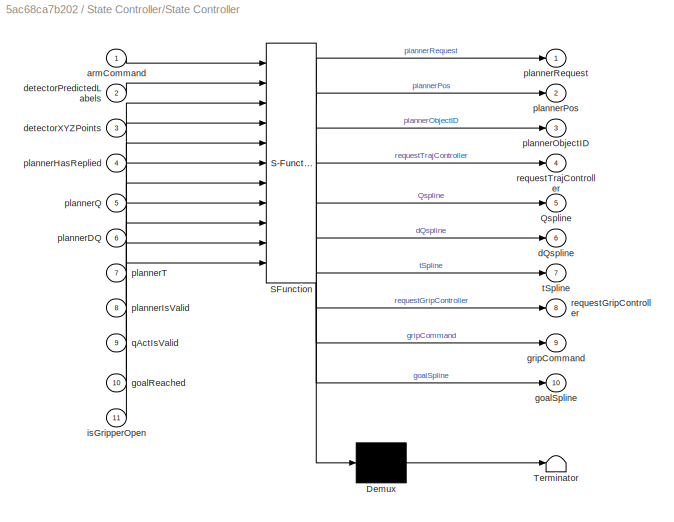
BLOCK [SubSystem] State Controller/State Controller
  ErrorFcn = Stateflow.Translate.translate
  PermitHierarchicalResolution = ExplicitOnly
  Ports = [11, 10]
  RequestExecContextInheritance = off
  SFBlockType = Chart
  TreatAsAtomicUnit = on
BLOCK [Demux] State Controller/State Controller/ Demux 
  Outputs = 1
  Ports = [1, 1]
BLOCK [S-Function] State Controller/State Controller/ SFunction 
  EnableBusSupport = on
  FunctionName = sf_sfun
  Parameters = homeToIdleSpline,idleToHomeSpline
  PortCounts = [11 11]
  Ports = [11, 11]
  SFcnIsStateOwnerBlock = off
  SFunctionDeploymentMode = off
  Tag = Stateflow S-Function mainController 3
BLOCK [Terminator] State Controller/State Controller/ Terminator 
BLOCK [Outport] State Controller/State Controller/Qspline
  IconDisplay = Port number
  Port = 5
BLOCK [Inport] State Controller/State Controller/armCommand
  IconDisplay = Port number
BLOCK [Outport] State Controller/State Controller/dQspline
  IconDisplay = Port number
  Port = 6
BLOCK [Inport] State Controller/State Controller/detectorPredictedLabels
  IconDisplay = Port number
  Port = 2
BLOCK [Inport] State Controller/State Controller/detectorXYZPoints
  IconDisplay = Port number
  Port = 3
BLOCK [Inport] State Controller/State Controller/goalReached
  IconDisplay = Port number
  Port = 10
BLOCK [Outport] State Controller/State Controller/goalSpline
  IconDisplay = Port number
  Port = 10
BLOCK [Outport] State Controller/State Controller/gripCommand
  IconDisplay = Port number
  Port = 9
BLOCK [Inport] State Controller/State Controller/isGripperOpen
  IconDisplay = Port number
  Port = 11
BLOCK [Inport] State Controller/State Controller/plannerDQ
  IconDisplay = Port number
  Port = 6
BLOCK [Inport] State Controller/State Controller/plannerHasReplied
  IconDisplay = Port number
  Port = 4
BLOCK [Inport] State Controller/State Controller/plannerIsValid
  IconDisplay = Port number
  Port = 8
BLOCK [Outport] State Controller/State Controller/plannerObjectID
  IconDisplay = Port number
  Port = 3
BLOCK [Outport] State Controller/State Controller/plannerPos
  IconDisplay = Port number
  Port = 2
BLOCK [Inport] State Controller/State Controller/plannerQ
  IconDisplay = Port number
  Port = 5
BLOCK [Outport] State Controller/State Controller/plannerRequest
  IconDisplay = Port number
BLOCK [Inport] State Controller/State Controller/plannerT
  IconDisplay = Port number
  Port = 7
BLOCK [Inport] State Controller/State Controller/qActIsValid
  IconDisplay = Port number
  Port = 9
BLOCK [Outport] State Controller/State Controller/requestGripController
  IconDisplay = Port number
  Port = 8
BLOCK [Outport] State Controller/State Controller/requestTrajController
  IconDisplay = Port number
  Port = 4
BLOCK [Outport] State Controller/State Controller/tSpline
  IconDisplay = Port number
  Port = 7
BLOCK [Outport] State Controller/armCommand
  IconDisplay = Port number
  Port = 2
BLOCK [Inport] State Controller/goalReached
  IconDisplay = Port number
  Port = 4
BLOCK [Outport] State Controller/goalSpline
  IconDisplay = Port number
  Port = 3
BLOCK [Inport] State Controller/isGripperOpen
  IconDisplay = Port number
  Port = 6
BLOCK [Inport] State Controller/objectDetected1
  IconDisplay = Port number
  Port = 3
BLOCK [Outport] State Controller/plannerCommand
  IconDisplay = Port number
BLOCK [Inport] State Controller/plannerResponse
  IconDisplay = Port number
BLOCK [Inport] State Controller/qActIsValid
  IconDisplay = Port number
  Port = 5
BLOCK [Inport] State Controller/userCommands
  IconDisplay = Port number
  Port = 2
BLOCK [UnitDelay] Unit Delay
  HasFrameUpgradeWarning = on
  SampleTime = -1
BLOCK [Constant] User Command
  OutDataTypeStr = uint32
  SampleTime = 0.1
ANNOTATION (root): armCommand = 0: Go to Home armCommand = 1: Go to Idle and Grab Object
ANNOTATION (root): Pick and Place Controller
ANNOTATION Check If Goal Reached/Detect Object: 1:Blue 2:Turquoise 3:Purple
ANNOTATION Robot ROS Interface1/Arm Trajectory Controller: Specify Joint Names here
ANNOTATION Robot ROS Interface1/Gripper Trajectory Controller: Specify Joint Names here
LINE Bus Creator2:1 -> State Controller:2
NET Check If Goal Reached/Add:1 -> Check If Goal Reached/Dot Product:2, Check If Goal Reached/Math Function:1
LINE Check If Goal Reached/Detect Object/Manual Switch1:1 -> Check If Goal Reached/Detect Object/objectDetected:1
LINE Check If Goal Reached/Detect Object/Manual Switch2:1 -> Check If Goal Reached/Detect Object/Manual Switch3:1
LINE Check If Goal Reached/Detect Object/Manual Switch3:1 -> Check If Goal Reached/Detect Object/objectPos:1
LINE Check If Goal Reached/Detect Object/Manual Switch:1 -> Check If Goal Reached/Detect Object/Manual Switch1:1
LINE Check If Goal Reached/Detect Object/object Detected Pos1:1 -> Check If Goal Reached/Detect Object/Manual Switch2:2
LINE Check If Goal Reached/Detect Object/object Detected Pos2:1 -> Check If Goal Reached/Detect Object/Manual Switch3:2
LINE Check If Goal Reached/Detect Object/object Detected Pos:1 -> Check If Goal Reached/Detect Object/Manual Switch2:1
LINE Check If Goal Reached/Detect Object/object Detected1:1 -> Check If Goal Reached/Detect Object/Manual Switch:2
LINE Check If Goal Reached/Detect Object/object Detected2:1 -> Check If Goal Reached/Detect Object/Manual Switch1:2
LINE Check If Goal Reached/Detect Object/object Detected:1 -> Check If Goal Reached/Detect Object/Manual Switch:1
LINE Check If Goal Reached/Dot Product:1 -> Check If Goal Reached/Sqrt:1
LINE Check If Goal Reached/Error Tolerance:1 -> Check If Goal Reached/Relational Operator:2
LINE Check If Goal Reached/IC1:1 -> Check If Goal Reached/Terminator:1
LINE Check If Goal Reached/IC:1 -> Check If Goal Reached/goalReached:1
LINE Check If Goal Reached/Math Function:1 -> Check If Goal Reached/Dot Product:1
LINE Check If Goal Reached/Relational Operator:1 -> Check If Goal Reached/IC:1
NET Check If Goal Reached/Sqrt:1 -> Check If Goal Reached/IC1:1, Check If Goal Reached/Relational Operator:1
LINE Check If Goal Reached/qAct:1 -> Check If Goal Reached/Add:2
LINE Check If Goal Reached/qDes:1 -> Check If Goal Reached/Add:1
LINE Check If Goal Reached:1 -> Unit Delay:1
LINE From1:1 -> State Controller:5
LINE From:1 -> State Controller:6
LINE Motion Planner/Bus Creator:1 -> Motion Planner/response:1
LINE Motion Planner/Bus Selector:1 -> Motion Planner/Request Motion Plan:trigger
LINE Motion Planner/Bus Selector:2 -> Motion Planner/Request Motion Plan:1
LINE Motion Planner/Bus Selector:3 -> Motion Planner/Request Motion Plan:2
LINE Motion Planner/Planner Response/Joint Trajectory to Spline Matrices/Bus Selector:1 -> Motion Planner/Planner Response/Joint Trajectory to Spline Matrices/pointsToSplineData:1
LINE Motion Planner/Planner Response/Joint Trajectory to Spline Matrices/Bus Selector:2 -> Motion Planner/Planner Response/Joint Trajectory to Spline Matrices/Relational Operator:1
LINE Motion Planner/Planner Response/Joint Trajectory to Spline Matrices/Constant:1 -> Motion Planner/Planner Response/Joint Trajectory to Spline Matrices/Data Type Conversion:1
LINE Motion Planner/Planner Response/Joint Trajectory to Spline Matrices/Data Type Conversion:1 -> Motion Planner/Planner Response/Joint Trajectory to Spline Matrices/Relational Operator:2
LINE Motion Planner/Planner Response/Joint Trajectory to Spline Matrices/Logical Operator:1 -> Motion Planner/Planner Response/Joint Trajectory to Spline Matrices/isValid:1
LINE Motion Planner/Planner Response/Joint Trajectory to Spline Matrices/Relational Operator:1 -> Motion Planner/Planner Response/Joint Trajectory to Spline Matrices/Logical Operator:2
LINE Motion Planner/Planner Response/Joint Trajectory to Spline Matrices/jntTrajMsg:1 -> Motion Planner/Planner Response/Joint Trajectory to Spline Matrices/Bus Selector:1
LINE Motion Planner/Planner Response/Joint Trajectory to Spline Matrices/pointsToSplineData:1 -> Motion Planner/Planner Response/Joint Trajectory to Spline Matrices/Q:1
LINE Motion Planner/Planner Response/Joint Trajectory to Spline Matrices/pointsToSplineData:2 -> Motion Planner/Planner Response/Joint Trajectory to Spline Matrices/dQ:1
LINE Motion Planner/Planner Response/Joint Trajectory to Spline Matrices/pointsToSplineData:3 -> Motion Planner/Planner Response/Joint Trajectory to Spline Matrices/t:1
LINE Motion Planner/Planner Response/Joint Trajectory to Spline Matrices/pointsToSplineData:4 -> Motion Planner/Planner Response/Joint Trajectory to Spline Matrices/Logical Operator:1
LINE Motion Planner/Planner Response/Joint Trajectory to Spline Matrices/pointsToSplineWithBlocks/Bus Selector1:1 -> Motion Planner/Planner Response/Joint Trajectory to Spline Matrices/pointsToSplineWithBlocks/Selector6:1
LINE Motion Planner/Planner Response/Joint Trajectory to Spline Matrices/pointsToSplineWithBlocks/Bus Selector1:2 -> Motion Planner/Planner Response/Joint Trajectory to Spline Matrices/pointsToSplineWithBlocks/Selector7:1
LINE Motion Planner/Planner Response/Joint Trajectory to Spline Matrices/pointsToSplineWithBlocks/Bus Selector2:1 -> Motion Planner/Planner Response/Joint Trajectory to Spline Matrices/pointsToSplineWithBlocks/Selector8:1
LINE Motion Planner/Planner Response/Joint Trajectory to Spline Matrices/pointsToSplineWithBlocks/Bus Selector2:2 -> Motion Planner/Planner Response/Joint Trajectory to Spline Matrices/pointsToSplineWithBlocks/Selector9:1
LINE Motion Planner/Planner Response/Joint Trajectory to Spline Matrices/pointsToSplineWithBlocks/Bus Selector3:1 -> Motion Planner/Planner Response/Joint Trajectory to Spline Matrices/pointsToSplineWithBlocks/Selector12:1
LINE Motion Planner/Planner Response/Joint Trajectory to Spline Matrices/pointsToSplineWithBlocks/Bus Selector3:2 -> Motion Planner/Planner Response/Joint Trajectory to Spline Matrices/pointsToSplineWithBlocks/Selector13:1
LINE Motion Planner/Planner Response/Joint Trajectory to Spline Matrices/pointsToSplineWithBlocks/Bus Selector4:1 -> Motion Planner/Planner Response/Joint Trajectory to Spline Matrices/pointsToSplineWithBlocks/Selector14:1
LINE Motion Planner/Planner Response/Joint Trajectory to Spline Matrices/pointsToSplineWithBlocks/Bus Selector4:2 -> Motion Planner/Planner Response/Joint Trajectory to Spline Matrices/pointsToSplineWithBlocks/Selector15:1
LINE Motion Planner/Planner Response/Joint Trajectory to Spline Matrices/pointsToSplineWithBlocks/Bus Selector5:1 -> Motion Planner/Planner Response/Joint Trajectory to Spline Matrices/pointsToSplineWithBlocks/Selector16:1
LINE Motion Planner/Planner Response/Joint Trajectory to Spline Matrices/pointsToSplineWithBlocks/Bus Selector5:2 -> Motion Planner/Planner Response/Joint Trajectory to Spline Matrices/pointsToSplineWithBlocks/Selector17:1
LINE Motion Planner/Planner Response/Joint Trajectory to Spline Matrices/pointsToSplineWithBlocks/Bus Selector6:1 -> Motion Planner/Planner Response/Joint Trajectory to Spline Matrices/pointsToSplineWithBlocks/Selector10:1
LINE Motion Planner/Planner Response/Joint Trajectory to Spline Matrices/pointsToSplineWithBlocks/Bus Selector6:2 -> Motion Planner/Planner Response/Joint Trajectory to Spline Matrices/pointsToSplineWithBlocks/Selector11:1
LINE Motion Planner/Planner Response/Joint Trajectory to Spline Matrices/pointsToSplineWithBlocks/Constant1:1 -> Motion Planner/Planner Response/Joint Trajectory to Spline Matrices/pointsToSplineWithBlocks/Selector1:2
LINE Motion Planner/Planner Response/Joint Trajectory to Spline Matrices/pointsToSplineWithBlocks/Constant2:1 -> Motion Planner/Planner Response/Joint Trajectory to Spline Matrices/pointsToSplineWithBlocks/Selector2:2
LINE Motion Planner/Planner Response/Joint Trajectory to Spline Matrices/pointsToSplineWithBlocks/Constant3:1 -> Motion Planner/Planner Response/Joint Trajectory to Spline Matrices/pointsToSplineWithBlocks/Selector3:2
LINE Motion Planner/Planner Response/Joint Trajectory to Spline Matrices/pointsToSplineWithBlocks/Constant4:1 -> Motion Planner/Planner Response/Joint Trajectory to Spline Matrices/pointsToSplineWithBlocks/Selector4:2
LINE Motion Planner/Planner Response/Joint Trajectory to Spline Matrices/pointsToSplineWithBlocks/Constant5:1 -> Motion Planner/Planner Response/Joint Trajectory to Spline Matrices/pointsToSplineWithBlocks/Selector5:2
LINE Motion Planner/Planner Response/Joint Trajectory to Spline Matrices/pointsToSplineWithBlocks/Constant:1 -> Motion Planner/Planner Response/Joint Trajectory to Spline Matrices/pointsToSplineWithBlocks/Selector:2
LINE Motion Planner/Planner Response/Joint Trajectory to Spline Matrices/pointsToSplineWithBlocks/From10:1 -> Motion Planner/Planner Response/Joint Trajectory to Spline Matrices/pointsToSplineWithBlocks/Vector Concatenate1:5
LINE Motion Planner/Planner Response/Joint Trajectory to Spline Matrices/pointsToSplineWithBlocks/From11:1 -> Motion Planner/Planner Response/Joint Trajectory to Spline Matrices/pointsToSplineWithBlocks/Vector Concatenate1:6
LINE Motion Planner/Planner Response/Joint Trajectory to Spline Matrices/pointsToSplineWithBlocks/From1:1 -> Motion Planner/Planner Response/Joint Trajectory to Spline Matrices/pointsToSplineWithBlocks/Vector Concatenate:2
LINE Motion Planner/Planner Response/Joint Trajectory to Spline Matrices/pointsToSplineWithBlocks/From2:1 -> Motion Planner/Planner Response/Joint Trajectory to Spline Matrices/pointsToSplineWithBlocks/Vector Concatenate:3
LINE Motion Planner/Planner Response/Joint Trajectory to Spline Matrices/pointsToSplineWithBlocks/From3:1 -> Motion Planner/Planner Response/Joint Trajectory to Spline Matrices/pointsToSplineWithBlocks/Vector Concatenate:4
LINE Motion Planner/Planner Response/Joint Trajectory to Spline Matrices/pointsToSplineWithBlocks/From4:1 -> Motion Planner/Planner Response/Joint Trajectory to Spline Matrices/pointsToSplineWithBlocks/Vector Concatenate:5
LINE Motion Planner/Planner Response/Joint Trajectory to Spline Matrices/pointsToSplineWithBlocks/From5:1 -> Motion Planner/Planner Response/Joint Trajectory to Spline Matrices/pointsToSplineWithBlocks/Vector Concatenate:6
LINE Motion Planner/Planner Response/Joint Trajectory to Spline Matrices/pointsToSplineWithBlocks/From6:1 -> Motion Planner/Planner Response/Joint Trajectory to Spline Matrices/pointsToSplineWithBlocks/Vector Concatenate1:1
LINE Motion Planner/Planner Response/Joint Trajectory to Spline Matrices/pointsToSplineWithBlocks/From7:1 -> Motion Planner/Planner Response/Joint Trajectory to Spline Matrices/pointsToSplineWithBlocks/Vector Concatenate1:2
LINE Motion Planner/Planner Response/Joint Trajectory to Spline Matrices/pointsToSplineWithBlocks/From8:1 -> Motion Planner/Planner Response/Joint Trajectory to Spline Matrices/pointsToSplineWithBlocks/Vector Concatenate1:3
LINE Motion Planner/Planner Response/Joint Trajectory to Spline Matrices/pointsToSplineWithBlocks/From9:1 -> Motion Planner/Planner Response/Joint Trajectory to Spline Matrices/pointsToSplineWithBlocks/Vector Concatenate1:4
LINE Motion Planner/Planner Response/Joint Trajectory to Spline Matrices/pointsToSplineWithBlocks/From:1 -> Motion Planner/Planner Response/Joint Trajectory to Spline Matrices/pointsToSplineWithBlocks/Vector Concatenate:1
LINE Motion Planner/Planner Response/Joint Trajectory to Spline Matrices/pointsToSplineWithBlocks/Selector10:1 -> Motion Planner/Planner Response/Joint Trajectory to Spline Matrices/pointsToSplineWithBlocks/Goto5:1
LINE Motion Planner/Planner Response/Joint Trajectory to Spline Matrices/pointsToSplineWithBlocks/Selector11:1 -> Motion Planner/Planner Response/Joint Trajectory to Spline Matrices/pointsToSplineWithBlocks/Goto11:1
LINE Motion Planner/Planner Response/Joint Trajectory to Spline Matrices/pointsToSplineWithBlocks/Selector12:1 -> Motion Planner/Planner Response/Joint Trajectory to Spline Matrices/pointsToSplineWithBlocks/Goto2:1
LINE Motion Planner/Planner Response/Joint Trajectory to Spline Matrices/pointsToSplineWithBlocks/Selector13:1 -> Motion Planner/Planner Response/Joint Trajectory to Spline Matrices/pointsToSplineWithBlocks/Goto8:1
LINE Motion Planner/Planner Response/Joint Trajectory to Spline Matrices/pointsToSplineWithBlocks/Selector14:1 -> Motion Planner/Planner Response/Joint Trajectory to Spline Matrices/pointsToSplineWithBlocks/Goto3:1
LINE Motion Planner/Planner Response/Joint Trajectory to Spline Matrices/pointsToSplineWithBlocks/Selector15:1 -> Motion Planner/Planner Response/Joint Trajectory to Spline Matrices/pointsToSplineWithBlocks/Goto9:1
LINE Motion Planner/Planner Response/Joint Trajectory to Spline Matrices/pointsToSplineWithBlocks/Selector16:1 -> Motion Planner/Planner Response/Joint Trajectory to Spline Matrices/pointsToSplineWithBlocks/Goto4:1
LINE Motion Planner/Planner Response/Joint Trajectory to Spline Matrices/pointsToSplineWithBlocks/Selector17:1 -> Motion Planner/Planner Response/Joint Trajectory to Spline Matrices/pointsToSplineWithBlocks/Goto10:1
LINE Motion Planner/Planner Response/Joint Trajectory to Spline Matrices/pointsToSplineWithBlocks/Selector1:1 -> Motion Planner/Planner Response/Joint Trajectory to Spline Matrices/pointsToSplineWithBlocks/Bus Selector2:1
LINE Motion Planner/Planner Response/Joint Trajectory to Spline Matrices/pointsToSplineWithBlocks/Selector2:1 -> Motion Planner/Planner Response/Joint Trajectory to Spline Matrices/pointsToSplineWithBlocks/Bus Selector3:1
LINE Motion Planner/Planner Response/Joint Trajectory to Spline Matrices/pointsToSplineWithBlocks/Selector3:1 -> Motion Planner/Planner Response/Joint Trajectory to Spline Matrices/pointsToSplineWithBlocks/Bus Selector4:1
LINE Motion Planner/Planner Response/Joint Trajectory to Spline Matrices/pointsToSplineWithBlocks/Selector4:1 -> Motion Planner/Planner Response/Joint Trajectory to Spline Matrices/pointsToSplineWithBlocks/Bus Selector5:1
LINE Motion Planner/Planner Response/Joint Trajectory to Spline Matrices/pointsToSplineWithBlocks/Selector5:1 -> Motion Planner/Planner Response/Joint Trajectory to Spline Matrices/pointsToSplineWithBlocks/Bus Selector6:1
LINE Motion Planner/Planner Response/Joint Trajectory to Spline Matrices/pointsToSplineWithBlocks/Selector6:1 -> Motion Planner/Planner Response/Joint Trajectory to Spline Matrices/pointsToSplineWithBlocks/Goto:1
LINE Motion Planner/Planner Response/Joint Trajectory to Spline Matrices/pointsToSplineWithBlocks/Selector7:1 -> Motion Planner/Planner Response/Joint Trajectory to Spline Matrices/pointsToSplineWithBlocks/Goto6:1
LINE Motion Planner/Planner Response/Joint Trajectory to Spline Matrices/pointsToSplineWithBlocks/Selector8:1 -> Motion Planner/Planner Response/Joint Trajectory to Spline Matrices/pointsToSplineWithBlocks/Goto1:1
LINE Motion Planner/Planner Response/Joint Trajectory to Spline Matrices/pointsToSplineWithBlocks/Selector9:1 -> Motion Planner/Planner Response/Joint Trajectory to Spline Matrices/pointsToSplineWithBlocks/Goto7:1
LINE Motion Planner/Planner Response/Joint Trajectory to Spline Matrices/pointsToSplineWithBlocks/Selector:1 -> Motion Planner/Planner Response/Joint Trajectory to Spline Matrices/pointsToSplineWithBlocks/Bus Selector1:1
LINE Motion Planner/Planner Response/Joint Trajectory to Spline Matrices/pointsToSplineWithBlocks/Vector Concatenate1:1 -> Motion Planner/Planner Response/Joint Trajectory to Spline Matrices/pointsToSplineWithBlocks/dQ:1
LINE Motion Planner/Planner Response/Joint Trajectory to Spline Matrices/pointsToSplineWithBlocks/Vector Concatenate:1 -> Motion Planner/Planner Response/Joint Trajectory to Spline Matrices/pointsToSplineWithBlocks/Q:1
NET Motion Planner/Planner Response/Joint Trajectory to Spline Matrices/pointsToSplineWithBlocks/points:1 -> Motion Planner/Planner Response/Joint Trajectory to Spline Matrices/pointsToSplineWithBlocks/Selector1:1, Motion Planner/Planner Response/Joint Trajectory to Spline Matrices/pointsToSplineWithBlocks/Selector2:1, Motion Planner/Planner Response/Joint Trajectory to Spline Matrices/pointsToSplineWithBlocks/Selector3:1, Motion Planner/Planner Response/Joint Trajectory to Spline Matrices/pointsToSplineWithBlocks/Selector4:1, Motion Planner/Planner Response/Joint Trajectory to Spline Matrices/pointsToSplineWithBlocks/Selector5:1, Motion Planner/Planner Response/Joint Trajectory to Spline Matrices/pointsToSplineWithBlocks/Selector:1
LINE Motion Planner/Planner Response/Joint Trajectory to Spline Matrices:1 -> Motion Planner/Planner Response/Q:1
LINE Motion Planner/Planner Response/Joint Trajectory to Spline Matrices:2 -> Motion Planner/Planner Response/dQ:1
LINE Motion Planner/Planner Response/Joint Trajectory to Spline Matrices:3 -> Motion Planner/Planner Response/t:1
LINE Motion Planner/Planner Response/Joint Trajectory to Spline Matrices:4 -> Motion Planner/Planner Response/isValid:1
NET Motion Planner/Planner Response/Subscribe:1 -> Motion Planner/Planner Response/Joint Trajectory to Spline Matrices:trigger, Motion Planner/Planner Response/hasData:1
LINE Motion Planner/Planner Response/Subscribe:2 -> Motion Planner/Planner Response/Joint Trajectory to Spline Matrices:1
LINE Motion Planner/Planner Response:1 -> Motion Planner/Bus Creator:1
LINE Motion Planner/Planner Response:2 -> Motion Planner/Bus Creator:2
LINE Motion Planner/Planner Response:3 -> Motion Planner/Bus Creator:3
LINE Motion Planner/Planner Response:4 -> Motion Planner/Bus Creator:4
LINE Motion Planner/Planner Response:5 -> Motion Planner/Bus Creator:5
LINE Motion Planner/Request Motion Plan/Assignment:1 -> Motion Planner/Request Motion Plan/Bus Assignment1:2
LINE Motion Planner/Request Motion Plan/Blank Message1:1 -> Motion Planner/Request Motion Plan/Bus Assignment1:1
LINE Motion Planner/Request Motion Plan/Bus Assignment1:1 -> Motion Planner/Request Motion Plan/Publish1:1
LINE Motion Planner/Request Motion Plan/Constant:1 -> Motion Planner/Request Motion Plan/Assignment:1
LINE Motion Planner/Request Motion Plan/Data Type Conversion1:1 -> Motion Planner/Request Motion Plan/Bus Assignment1:3
LINE Motion Planner/Request Motion Plan/Data Type Conversion:1 -> Motion Planner/Request Motion Plan/Vector Concatenate:2
NET Motion Planner/Request Motion Plan/Vector Concatenate:1 -> Motion Planner/Request Motion Plan/Assignment:2, Motion Planner/Request Motion Plan/Width:1
LINE Motion Planner/Request Motion Plan/Width:1 -> Motion Planner/Request Motion Plan/Data Type Conversion1:1
LINE Motion Planner/Request Motion Plan/objectID:1 -> Motion Planner/Request Motion Plan/Data Type Conversion:1
LINE Motion Planner/Request Motion Plan/objectPos:1 -> Motion Planner/Request Motion Plan/Vector Concatenate:1
LINE Motion Planner/Request Motion Plan/qAct:1 -> Motion Planner/Request Motion Plan/Vector Concatenate:3
LINE Motion Planner/qAct:1 -> Motion Planner/Request Motion Plan:3
LINE Motion Planner/request:1 -> Motion Planner/Bus Selector:1
LINE Motion Planner:1 -> State Controller:1
LINE Object Detector/Bus Creator:1 -> Object Detector/prediction:1
NET Object Detector/Bus Selector:1 -> Object Detector/Display:1, Object Detector/ObjectDetector:1
LINE Object Detector/Bus Selector:2 -> Object Detector/ObjectDetector:2
LINE Object Detector/Data Type Conversion1:1 -> Object Detector/Bus Creator:1
LINE Object Detector/Display/Data Type Conversion1:1 -> Object Detector/Display/Draw Shapes:1
LINE Object Detector/Display/Data Type Conversion:1 -> Object Detector/Display/Insert Text:3
LINE Object Detector/Display/Draw Shapes:1 -> Object Detector/Display/Insert Text:1
LINE Object Detector/Display/Formatting:1 -> Object Detector/Display/Insert Text1:2
LINE Object Detector/Display/Formatting:2 -> Object Detector/Display/Insert Text1:3
LINE Object Detector/Display/Formatting:3 -> Object Detector/Display/Insert Text1:4
LINE Object Detector/Display/Image:1 -> Object Detector/Display/Data Type Conversion1:1
LINE Object Detector/Display/Insert Text1:1 -> Object Detector/Display/To Video Display1:1
LINE Object Detector/Display/Insert Text:1 -> Object Detector/Display/Insert Text1:1
NET Object Detector/Display/Labels:1 -> Object Detector/Display/Formatting:1, Object Detector/Display/MATLAB Function:1
LINE Object Detector/Display/MATLAB Function:1 -> Object Detector/Display/Insert Text:2
LINE Object Detector/Display/Select Top-left points:1 -> Object Detector/Display/Data Type Conversion:1
NET Object Detector/Display/bboxes:1 -> Object Detector/Display/Draw Shapes:2, Object Detector/Display/Select Top-left points:1
LINE Object Detector/Display/xyzPoints:1 -> Object Detector/Display/Formatting:2
NET Object Detector/ObjectDetector:1 -> Object Detector/Data Type Conversion1:1, Object Detector/Display:2
LINE Object Detector/ObjectDetector:2 -> Object Detector/Display:3
NET Object Detector/ObjectDetector:3 -> Object Detector/Bus Creator:2, Object Detector/Display:4
LINE Object Detector/pointCloud:1 -> Object Detector/Bus Selector:1
LINE Object Detector:1 -> State Controller:3
LINE Robot ROS Interface1/Arm Trajectory Controller/ Assign Joint Trajectory:1 -> Robot ROS Interface1/Arm Trajectory Controller/Publish1:1
LINE Robot ROS Interface1/Arm Trajectory Controller/Assign Joint Trajectory Point/Add:1 -> Robot ROS Interface1/Arm Trajectory Controller/Assign Joint Trajectory Point/Gain:1
LINE Robot ROS Interface1/Arm Trajectory Controller/Assign Joint Trajectory Point/Assign Joint Trajectory Point:1 -> Robot ROS Interface1/Arm Trajectory Controller/Assign Joint Trajectory Point/jointTrajPoint:1
LINE Robot ROS Interface1/Arm Trajectory Controller/Assign Joint Trajectory Point/Assignment1:1 -> Robot ROS Interface1/Arm Trajectory Controller/Assign Joint Trajectory Point/Assign Joint Trajectory Point:5
LINE Robot ROS Interface1/Arm Trajectory Controller/Assign Joint Trajectory Point/Assignment:1 -> Robot ROS Interface1/Arm Trajectory Controller/Assign Joint Trajectory Point/Assign Joint Trajectory Point:4
LINE Robot ROS Interface1/Arm Trajectory Controller/Assign Joint Trajectory Point/Blank Message2:1 -> Robot ROS Interface1/Arm Trajectory Controller/Assign Joint Trajectory Point/Assign Joint Trajectory Point:1
NET Robot ROS Interface1/Arm Trajectory Controller/Assign Joint Trajectory Point/Data Type Conversion2:1 -> Robot ROS Interface1/Arm Trajectory Controller/Assign Joint Trajectory Point/Assign Joint Trajectory Point:2, Robot ROS Interface1/Arm Trajectory Controller/Assign Joint Trajectory Point/Assign Joint Trajectory Point:3
LINE Robot ROS Interface1/Arm Trajectory Controller/Assign Joint Trajectory Point/Gain:1 -> Robot ROS Interface1/Arm Trajectory Controller/Assign Joint Trajectory Point/Assign Joint Trajectory Point:7
NET Robot ROS Interface1/Arm Trajectory Controller/Assign Joint Trajectory Point/Rounding Function:1 -> Robot ROS Interface1/Arm Trajectory Controller/Assign Joint Trajectory Point/Add:2, Robot ROS Interface1/Arm Trajectory Controller/Assign Joint Trajectory Point/Assign Joint Trajectory Point:6
LINE Robot ROS Interface1/Arm Trajectory Controller/Assign Joint Trajectory Point/dq:1 -> Robot ROS Interface1/Arm Trajectory Controller/Assign Joint Trajectory Point/Assignment1:2
LINE Robot ROS Interface1/Arm Trajectory Controller/Assign Joint Trajectory Point/numJoints:1 -> Robot ROS Interface1/Arm Trajectory Controller/Assign Joint Trajectory Point/Data Type Conversion2:1
LINE Robot ROS Interface1/Arm Trajectory Controller/Assign Joint Trajectory Point/pos:1 -> Robot ROS Interface1/Arm Trajectory Controller/Assign Joint Trajectory Point/Assignment:1
LINE Robot ROS Interface1/Arm Trajectory Controller/Assign Joint Trajectory Point/q:1 -> Robot ROS Interface1/Arm Trajectory Controller/Assign Joint Trajectory Point/Assignment:2
NET Robot ROS Interface1/Arm Trajectory Controller/Assign Joint Trajectory Point/time:1 -> Robot ROS Interface1/Arm Trajectory Controller/Assign Joint Trajectory Point/Add:1, Robot ROS Interface1/Arm Trajectory Controller/Assign Joint Trajectory Point/Rounding Function:1
LINE Robot ROS Interface1/Arm Trajectory Controller/Assign Joint Trajectory Point/vel:1 -> Robot ROS Interface1/Arm Trajectory Controller/Assign Joint Trajectory Point/Assignment1:1
LINE Robot ROS Interface1/Arm Trajectory Controller/Assign Joint Trajectory Point1/Add:1 -> Robot ROS Interface1/Arm Trajectory Controller/Assign Joint Trajectory Point1/Gain:1
LINE Robot ROS Interface1/Arm Trajectory Controller/Assign Joint Trajectory Point1/Assign Joint Trajectory Point:1 -> Robot ROS Interface1/Arm Trajectory Controller/Assign Joint Trajectory Point1/jointTrajPoint:1
LINE Robot ROS Interface1/Arm Trajectory Controller/Assign Joint Trajectory Point1/Assignment1:1 -> Robot ROS Interface1/Arm Trajectory Controller/Assign Joint Trajectory Point1/Assign Joint Trajectory Point:5
LINE Robot ROS Interface1/Arm Trajectory Controller/Assign Joint Trajectory Point1/Assignment:1 -> Robot ROS Interface1/Arm Trajectory Controller/Assign Joint Trajectory Point1/Assign Joint Trajectory Point:4
LINE Robot ROS Interface1/Arm Trajectory Controller/Assign Joint Trajectory Point1/Blank Message2:1 -> Robot ROS Interface1/Arm Trajectory Controller/Assign Joint Trajectory Point1/Assign Joint Trajectory Point:1
NET Robot ROS Interface1/Arm Trajectory Controller/Assign Joint Trajectory Point1/Data Type Conversion2:1 -> Robot ROS Interface1/Arm Trajectory Controller/Assign Joint Trajectory Point1/Assign Joint Trajectory Point:2, Robot ROS Interface1/Arm Trajectory Controller/Assign Joint Trajectory Point1/Assign Joint Trajectory Point:3
LINE Robot ROS Interface1/Arm Trajectory Controller/Assign Joint Trajectory Point1/Gain:1 -> Robot ROS Interface1/Arm Trajectory Controller/Assign Joint Trajectory Point1/Assign Joint Trajectory Point:7
NET Robot ROS Interface1/Arm Trajectory Controller/Assign Joint Trajectory Point1/Rounding Function:1 -> Robot ROS Interface1/Arm Trajectory Controller/Assign Joint Trajectory Point1/Add:2, Robot ROS Interface1/Arm Trajectory Controller/Assign Joint Trajectory Point1/Assign Joint Trajectory Point:6
LINE Robot ROS Interface1/Arm Trajectory Controller/Assign Joint Trajectory Point1/dq:1 -> Robot ROS Interface1/Arm Trajectory Controller/Assign Joint Trajectory Point1/Assignment1:2
LINE Robot ROS Interface1/Arm Trajectory Controller/Assign Joint Trajectory Point1/numJoints:1 -> Robot ROS Interface1/Arm Trajectory Controller/Assign Joint Trajectory Point1/Data Type Conversion2:1
LINE Robot ROS Interface1/Arm Trajectory Controller/Assign Joint Trajectory Point1/pos:1 -> Robot ROS Interface1/Arm Trajectory Controller/Assign Joint Trajectory Point1/Assignment:1
LINE Robot ROS Interface1/Arm Trajectory Controller/Assign Joint Trajectory Point1/q:1 -> Robot ROS Interface1/Arm Trajectory Controller/Assign Joint Trajectory Point1/Assignment:2
NET Robot ROS Interface1/Arm Trajectory Controller/Assign Joint Trajectory Point1/time:1 -> Robot ROS Interface1/Arm Trajectory Controller/Assign Joint Trajectory Point1/Add:1, Robot ROS Interface1/Arm Trajectory Controller/Assign Joint Trajectory Point1/Rounding Function:1
LINE Robot ROS Interface1/Arm Trajectory Controller/Assign Joint Trajectory Point1/vel:1 -> Robot ROS Interface1/Arm Trajectory Controller/Assign Joint Trajectory Point1/Assignment1:1
LINE Robot ROS Interface1/Arm Trajectory Controller/Assign Joint Trajectory Point1:1 -> Robot ROS Interface1/Arm Trajectory Controller/Vector Concatenate:2
LINE Robot ROS Interface1/Arm Trajectory Controller/Assign Joint Trajectory Point2/Add:1 -> Robot ROS Interface1/Arm Trajectory Controller/Assign Joint Trajectory Point2/Gain:1
LINE Robot ROS Interface1/Arm Trajectory Controller/Assign Joint Trajectory Point2/Assign Joint Trajectory Point:1 -> Robot ROS Interface1/Arm Trajectory Controller/Assign Joint Trajectory Point2/jointTrajPoint:1
LINE Robot ROS Interface1/Arm Trajectory Controller/Assign Joint Trajectory Point2/Assignment1:1 -> Robot ROS Interface1/Arm Trajectory Controller/Assign Joint Trajectory Point2/Assign Joint Trajectory Point:5
LINE Robot ROS Interface1/Arm Trajectory Controller/Assign Joint Trajectory Point2/Assignment:1 -> Robot ROS Interface1/Arm Trajectory Controller/Assign Joint Trajectory Point2/Assign Joint Trajectory Point:4
LINE Robot ROS Interface1/Arm Trajectory Controller/Assign Joint Trajectory Point2/Blank Message2:1 -> Robot ROS Interface1/Arm Trajectory Controller/Assign Joint Trajectory Point2/Assign Joint Trajectory Point:1
NET Robot ROS Interface1/Arm Trajectory Controller/Assign Joint Trajectory Point2/Data Type Conversion2:1 -> Robot ROS Interface1/Arm Trajectory Controller/Assign Joint Trajectory Point2/Assign Joint Trajectory Point:2, Robot ROS Interface1/Arm Trajectory Controller/Assign Joint Trajectory Point2/Assign Joint Trajectory Point:3
LINE Robot ROS Interface1/Arm Trajectory Controller/Assign Joint Trajectory Point2/Gain:1 -> Robot ROS Interface1/Arm Trajectory Controller/Assign Joint Trajectory Point2/Assign Joint Trajectory Point:7
NET Robot ROS Interface1/Arm Trajectory Controller/Assign Joint Trajectory Point2/Rounding Function:1 -> Robot ROS Interface1/Arm Trajectory Controller/Assign Joint Trajectory Point2/Add:2, Robot ROS Interface1/Arm Trajectory Controller/Assign Joint Trajectory Point2/Assign Joint Trajectory Point:6
LINE Robot ROS Interface1/Arm Trajectory Controller/Assign Joint Trajectory Point2/dq:1 -> Robot ROS Interface1/Arm Trajectory Controller/Assign Joint Trajectory Point2/Assignment1:2
LINE Robot ROS Interface1/Arm Trajectory Controller/Assign Joint Trajectory Point2/numJoints:1 -> Robot ROS Interface1/Arm Trajectory Controller/Assign Joint Trajectory Point2/Data Type Conversion2:1
LINE Robot ROS Interface1/Arm Trajectory Controller/Assign Joint Trajectory Point2/pos:1 -> Robot ROS Interface1/Arm Trajectory Controller/Assign Joint Trajectory Point2/Assignment:1
LINE Robot ROS Interface1/Arm Trajectory Controller/Assign Joint Trajectory Point2/q:1 -> Robot ROS Interface1/Arm Trajectory Controller/Assign Joint Trajectory Point2/Assignment:2
NET Robot ROS Interface1/Arm Trajectory Controller/Assign Joint Trajectory Point2/time:1 -> Robot ROS Interface1/Arm Trajectory Controller/Assign Joint Trajectory Point2/Add:1, Robot ROS Interface1/Arm Trajectory Controller/Assign Joint Trajectory Point2/Rounding Function:1
LINE Robot ROS Interface1/Arm Trajectory Controller/Assign Joint Trajectory Point2/vel:1 -> Robot ROS Interface1/Arm Trajectory Controller/Assign Joint Trajectory Point2/Assignment1:1
LINE Robot ROS Interface1/Arm Trajectory Controller/Assign Joint Trajectory Point2:1 -> Robot ROS Interface1/Arm Trajectory Controller/Vector Concatenate:3
LINE Robot ROS Interface1/Arm Trajectory Controller/Assign Joint Trajectory Point3/Add:1 -> Robot ROS Interface1/Arm Trajectory Controller/Assign Joint Trajectory Point3/Gain:1
LINE Robot ROS Interface1/Arm Trajectory Controller/Assign Joint Trajectory Point3/Assign Joint Trajectory Point:1 -> Robot ROS Interface1/Arm Trajectory Controller/Assign Joint Trajectory Point3/jointTrajPoint:1
LINE Robot ROS Interface1/Arm Trajectory Controller/Assign Joint Trajectory Point3/Assignment1:1 -> Robot ROS Interface1/Arm Trajectory Controller/Assign Joint Trajectory Point3/Assign Joint Trajectory Point:5
LINE Robot ROS Interface1/Arm Trajectory Controller/Assign Joint Trajectory Point3/Assignment:1 -> Robot ROS Interface1/Arm Trajectory Controller/Assign Joint Trajectory Point3/Assign Joint Trajectory Point:4
LINE Robot ROS Interface1/Arm Trajectory Controller/Assign Joint Trajectory Point3/Blank Message2:1 -> Robot ROS Interface1/Arm Trajectory Controller/Assign Joint Trajectory Point3/Assign Joint Trajectory Point:1
NET Robot ROS Interface1/Arm Trajectory Controller/Assign Joint Trajectory Point3/Data Type Conversion2:1 -> Robot ROS Interface1/Arm Trajectory Controller/Assign Joint Trajectory Point3/Assign Joint Trajectory Point:2, Robot ROS Interface1/Arm Trajectory Controller/Assign Joint Trajectory Point3/Assign Joint Trajectory Point:3
LINE Robot ROS Interface1/Arm Trajectory Controller/Assign Joint Trajectory Point3/Gain:1 -> Robot ROS Interface1/Arm Trajectory Controller/Assign Joint Trajectory Point3/Assign Joint Trajectory Point:7
NET Robot ROS Interface1/Arm Trajectory Controller/Assign Joint Trajectory Point3/Rounding Function:1 -> Robot ROS Interface1/Arm Trajectory Controller/Assign Joint Trajectory Point3/Add:2, Robot ROS Interface1/Arm Trajectory Controller/Assign Joint Trajectory Point3/Assign Joint Trajectory Point:6
LINE Robot ROS Interface1/Arm Trajectory Controller/Assign Joint Trajectory Point3/dq:1 -> Robot ROS Interface1/Arm Trajectory Controller/Assign Joint Trajectory Point3/Assignment1:2
LINE Robot ROS Interface1/Arm Trajectory Controller/Assign Joint Trajectory Point3/numJoints:1 -> Robot ROS Interface1/Arm Trajectory Controller/Assign Joint Trajectory Point3/Data Type Conversion2:1
LINE Robot ROS Interface1/Arm Trajectory Controller/Assign Joint Trajectory Point3/pos:1 -> Robot ROS Interface1/Arm Trajectory Controller/Assign Joint Trajectory Point3/Assignment:1
LINE Robot ROS Interface1/Arm Trajectory Controller/Assign Joint Trajectory Point3/q:1 -> Robot ROS Interface1/Arm Trajectory Controller/Assign Joint Trajectory Point3/Assignment:2
NET Robot ROS Interface1/Arm Trajectory Controller/Assign Joint Trajectory Point3/time:1 -> Robot ROS Interface1/Arm Trajectory Controller/Assign Joint Trajectory Point3/Add:1, Robot ROS Interface1/Arm Trajectory Controller/Assign Joint Trajectory Point3/Rounding Function:1
LINE Robot ROS Interface1/Arm Trajectory Controller/Assign Joint Trajectory Point3/vel:1 -> Robot ROS Interface1/Arm Trajectory Controller/Assign Joint Trajectory Point3/Assignment1:1
LINE Robot ROS Interface1/Arm Trajectory Controller/Assign Joint Trajectory Point3:1 -> Robot ROS Interface1/Arm Trajectory Controller/Vector Concatenate:4
LINE Robot ROS Interface1/Arm Trajectory Controller/Assign Joint Trajectory Point4/Add:1 -> Robot ROS Interface1/Arm Trajectory Controller/Assign Joint Trajectory Point4/Gain:1
LINE Robot ROS Interface1/Arm Trajectory Controller/Assign Joint Trajectory Point4/Assign Joint Trajectory Point:1 -> Robot ROS Interface1/Arm Trajectory Controller/Assign Joint Trajectory Point4/jointTrajPoint:1
LINE Robot ROS Interface1/Arm Trajectory Controller/Assign Joint Trajectory Point4/Assignment1:1 -> Robot ROS Interface1/Arm Trajectory Controller/Assign Joint Trajectory Point4/Assign Joint Trajectory Point:5
LINE Robot ROS Interface1/Arm Trajectory Controller/Assign Joint Trajectory Point4/Assignment:1 -> Robot ROS Interface1/Arm Trajectory Controller/Assign Joint Trajectory Point4/Assign Joint Trajectory Point:4
LINE Robot ROS Interface1/Arm Trajectory Controller/Assign Joint Trajectory Point4/Blank Message2:1 -> Robot ROS Interface1/Arm Trajectory Controller/Assign Joint Trajectory Point4/Assign Joint Trajectory Point:1
NET Robot ROS Interface1/Arm Trajectory Controller/Assign Joint Trajectory Point4/Data Type Conversion2:1 -> Robot ROS Interface1/Arm Trajectory Controller/Assign Joint Trajectory Point4/Assign Joint Trajectory Point:2, Robot ROS Interface1/Arm Trajectory Controller/Assign Joint Trajectory Point4/Assign Joint Trajectory Point:3
LINE Robot ROS Interface1/Arm Trajectory Controller/Assign Joint Trajectory Point4/Gain:1 -> Robot ROS Interface1/Arm Trajectory Controller/Assign Joint Trajectory Point4/Assign Joint Trajectory Point:7
NET Robot ROS Interface1/Arm Trajectory Controller/Assign Joint Trajectory Point4/Rounding Function:1 -> Robot ROS Interface1/Arm Trajectory Controller/Assign Joint Trajectory Point4/Add:2, Robot ROS Interface1/Arm Trajectory Controller/Assign Joint Trajectory Point4/Assign Joint Trajectory Point:6
LINE Robot ROS Interface1/Arm Trajectory Controller/Assign Joint Trajectory Point4/dq:1 -> Robot ROS Interface1/Arm Trajectory Controller/Assign Joint Trajectory Point4/Assignment1:2
LINE Robot ROS Interface1/Arm Trajectory Controller/Assign Joint Trajectory Point4/numJoints:1 -> Robot ROS Interface1/Arm Trajectory Controller/Assign Joint Trajectory Point4/Data Type Conversion2:1
LINE Robot ROS Interface1/Arm Trajectory Controller/Assign Joint Trajectory Point4/pos:1 -> Robot ROS Interface1/Arm Trajectory Controller/Assign Joint Trajectory Point4/Assignment:1
LINE Robot ROS Interface1/Arm Trajectory Controller/Assign Joint Trajectory Point4/q:1 -> Robot ROS Interface1/Arm Trajectory Controller/Assign Joint Trajectory Point4/Assignment:2
NET Robot ROS Interface1/Arm Trajectory Controller/Assign Joint Trajectory Point4/time:1 -> Robot ROS Interface1/Arm Trajectory Controller/Assign Joint Trajectory Point4/Add:1, Robot ROS Interface1/Arm Trajectory Controller/Assign Joint Trajectory Point4/Rounding Function:1
LINE Robot ROS Interface1/Arm Trajectory Controller/Assign Joint Trajectory Point4/vel:1 -> Robot ROS Interface1/Arm Trajectory Controller/Assign Joint Trajectory Point4/Assignment1:1
LINE Robot ROS Interface1/Arm Trajectory Controller/Assign Joint Trajectory Point4:1 -> Robot ROS Interface1/Arm Trajectory Controller/Vector Concatenate:5
LINE Robot ROS Interface1/Arm Trajectory Controller/Assign Joint Trajectory Point5/Add:1 -> Robot ROS Interface1/Arm Trajectory Controller/Assign Joint Trajectory Point5/Gain:1
LINE Robot ROS Interface1/Arm Trajectory Controller/Assign Joint Trajectory Point5/Assign Joint Trajectory Point:1 -> Robot ROS Interface1/Arm Trajectory Controller/Assign Joint Trajectory Point5/jointTrajPoint:1
LINE Robot ROS Interface1/Arm Trajectory Controller/Assign Joint Trajectory Point5/Assignment1:1 -> Robot ROS Interface1/Arm Trajectory Controller/Assign Joint Trajectory Point5/Assign Joint Trajectory Point:5
LINE Robot ROS Interface1/Arm Trajectory Controller/Assign Joint Trajectory Point5/Assignment:1 -> Robot ROS Interface1/Arm Trajectory Controller/Assign Joint Trajectory Point5/Assign Joint Trajectory Point:4
LINE Robot ROS Interface1/Arm Trajectory Controller/Assign Joint Trajectory Point5/Blank Message2:1 -> Robot ROS Interface1/Arm Trajectory Controller/Assign Joint Trajectory Point5/Assign Joint Trajectory Point:1
NET Robot ROS Interface1/Arm Trajectory Controller/Assign Joint Trajectory Point5/Data Type Conversion2:1 -> Robot ROS Interface1/Arm Trajectory Controller/Assign Joint Trajectory Point5/Assign Joint Trajectory Point:2, Robot ROS Interface1/Arm Trajectory Controller/Assign Joint Trajectory Point5/Assign Joint Trajectory Point:3
LINE Robot ROS Interface1/Arm Trajectory Controller/Assign Joint Trajectory Point5/Gain:1 -> Robot ROS Interface1/Arm Trajectory Controller/Assign Joint Trajectory Point5/Assign Joint Trajectory Point:7
NET Robot ROS Interface1/Arm Trajectory Controller/Assign Joint Trajectory Point5/Rounding Function:1 -> Robot ROS Interface1/Arm Trajectory Controller/Assign Joint Trajectory Point5/Add:2, Robot ROS Interface1/Arm Trajectory Controller/Assign Joint Trajectory Point5/Assign Joint Trajectory Point:6
LINE Robot ROS Interface1/Arm Trajectory Controller/Assign Joint Trajectory Point5/dq:1 -> Robot ROS Interface1/Arm Trajectory Controller/Assign Joint Trajectory Point5/Assignment1:2
LINE Robot ROS Interface1/Arm Trajectory Controller/Assign Joint Trajectory Point5/numJoints:1 -> Robot ROS Interface1/Arm Trajectory Controller/Assign Joint Trajectory Point5/Data Type Conversion2:1
LINE Robot ROS Interface1/Arm Trajectory Controller/Assign Joint Trajectory Point5/pos:1 -> Robot ROS Interface1/Arm Trajectory Controller/Assign Joint Trajectory Point5/Assignment:1
LINE Robot ROS Interface1/Arm Trajectory Controller/Assign Joint Trajectory Point5/q:1 -> Robot ROS Interface1/Arm Trajectory Controller/Assign Joint Trajectory Point5/Assignment:2
NET Robot ROS Interface1/Arm Trajectory Controller/Assign Joint Trajectory Point5/time:1 -> Robot ROS Interface1/Arm Trajectory Controller/Assign Joint Trajectory Point5/Add:1, Robot ROS Interface1/Arm Trajectory Controller/Assign Joint Trajectory Point5/Rounding Function:1
LINE Robot ROS Interface1/Arm Trajectory Controller/Assign Joint Trajectory Point5/vel:1 -> Robot ROS Interface1/Arm Trajectory Controller/Assign Joint Trajectory Point5/Assignment1:1
LINE Robot ROS Interface1/Arm Trajectory Controller/Assign Joint Trajectory Point5:1 -> Robot ROS Interface1/Arm Trajectory Controller/Vector Concatenate:6
LINE Robot ROS Interface1/Arm Trajectory Controller/Assign Joint Trajectory Point:1 -> Robot ROS Interface1/Arm Trajectory Controller/Vector Concatenate:1
LINE Robot ROS Interface1/Arm Trajectory Controller/Blank Message1:1 -> Robot ROS Interface1/Arm Trajectory Controller/ Assign Joint Trajectory:1
LINE Robot ROS Interface1/Arm Trajectory Controller/Col Index1:1 -> Robot ROS Interface1/Arm Trajectory Controller/Split Matrix1:4
LINE Robot ROS Interface1/Arm Trajectory Controller/Col Index2:1 -> Robot ROS Interface1/Arm Trajectory Controller/Split Matrix2:4
LINE Robot ROS Interface1/Arm Trajectory Controller/Col Index3:1 -> Robot ROS Interface1/Arm Trajectory Controller/Split Matrix3:4
LINE Robot ROS Interface1/Arm Trajectory Controller/Col Index4:1 -> Robot ROS Interface1/Arm Trajectory Controller/Split Matrix4:4
LINE Robot ROS Interface1/Arm Trajectory Controller/Col Index5:1 -> Robot ROS Interface1/Arm Trajectory Controller/Split Matrix5:4
LINE Robot ROS Interface1/Arm Trajectory Controller/Col Index:1 -> Robot ROS Interface1/Arm Trajectory Controller/Split Matrix:4
LINE Robot ROS Interface1/Arm Trajectory Controller/Split Matrix/Selector1:1 -> Robot ROS Interface1/Arm Trajectory Controller/Split Matrix/t:1
LINE Robot ROS Interface1/Arm Trajectory Controller/Split Matrix/Selector5:1 -> Robot ROS Interface1/Arm Trajectory Controller/Split Matrix/dq:1
LINE Robot ROS Interface1/Arm Trajectory Controller/Split Matrix/Selector:1 -> Robot ROS Interface1/Arm Trajectory Controller/Split Matrix/q:1
LINE Robot ROS Interface1/Arm Trajectory Controller/Split Matrix/dqMatrix:1 -> Robot ROS Interface1/Arm Trajectory Controller/Split Matrix/Selector5:1
NET Robot ROS Interface1/Arm Trajectory Controller/Split Matrix/index:1 -> Robot ROS Interface1/Arm Trajectory Controller/Split Matrix/Selector1:2, Robot ROS Interface1/Arm Trajectory Controller/Split Matrix/Selector5:2, Robot ROS Interface1/Arm Trajectory Controller/Split Matrix/Selector:2
LINE Robot ROS Interface1/Arm Trajectory Controller/Split Matrix/qMatrix:1 -> Robot ROS Interface1/Arm Trajectory Controller/Split Matrix/Selector:1
LINE Robot ROS Interface1/Arm Trajectory Controller/Split Matrix/tVector:1 -> Robot ROS Interface1/Arm Trajectory Controller/Split Matrix/Selector1:1
LINE Robot ROS Interface1/Arm Trajectory Controller/Split Matrix1/Selector1:1 -> Robot ROS Interface1/Arm Trajectory Controller/Split Matrix1/t:1
LINE Robot ROS Interface1/Arm Trajectory Controller/Split Matrix1/Selector5:1 -> Robot ROS Interface1/Arm Trajectory Controller/Split Matrix1/dq:1
LINE Robot ROS Interface1/Arm Trajectory Controller/Split Matrix1/Selector:1 -> Robot ROS Interface1/Arm Trajectory Controller/Split Matrix1/q:1
LINE Robot ROS Interface1/Arm Trajectory Controller/Split Matrix1/dqMatrix:1 -> Robot ROS Interface1/Arm Trajectory Controller/Split Matrix1/Selector5:1
NET Robot ROS Interface1/Arm Trajectory Controller/Split Matrix1/index:1 -> Robot ROS Interface1/Arm Trajectory Controller/Split Matrix1/Selector1:2, Robot ROS Interface1/Arm Trajectory Controller/Split Matrix1/Selector5:2, Robot ROS Interface1/Arm Trajectory Controller/Split Matrix1/Selector:2
LINE Robot ROS Interface1/Arm Trajectory Controller/Split Matrix1/qMatrix:1 -> Robot ROS Interface1/Arm Trajectory Controller/Split Matrix1/Selector:1
LINE Robot ROS Interface1/Arm Trajectory Controller/Split Matrix1/tVector:1 -> Robot ROS Interface1/Arm Trajectory Controller/Split Matrix1/Selector1:1
LINE Robot ROS Interface1/Arm Trajectory Controller/Split Matrix1:1 -> Robot ROS Interface1/Arm Trajectory Controller/Assign Joint Trajectory Point1:1
LINE Robot ROS Interface1/Arm Trajectory Controller/Split Matrix1:2 -> Robot ROS Interface1/Arm Trajectory Controller/Assign Joint Trajectory Point1:2
LINE Robot ROS Interface1/Arm Trajectory Controller/Split Matrix1:3 -> Robot ROS Interface1/Arm Trajectory Controller/Assign Joint Trajectory Point1:3
LINE Robot ROS Interface1/Arm Trajectory Controller/Split Matrix2/Selector1:1 -> Robot ROS Interface1/Arm Trajectory Controller/Split Matrix2/t:1
LINE Robot ROS Interface1/Arm Trajectory Controller/Split Matrix2/Selector5:1 -> Robot ROS Interface1/Arm Trajectory Controller/Split Matrix2/dq:1
LINE Robot ROS Interface1/Arm Trajectory Controller/Split Matrix2/Selector:1 -> Robot ROS Interface1/Arm Trajectory Controller/Split Matrix2/q:1
LINE Robot ROS Interface1/Arm Trajectory Controller/Split Matrix2/dqMatrix:1 -> Robot ROS Interface1/Arm Trajectory Controller/Split Matrix2/Selector5:1
NET Robot ROS Interface1/Arm Trajectory Controller/Split Matrix2/index:1 -> Robot ROS Interface1/Arm Trajectory Controller/Split Matrix2/Selector1:2, Robot ROS Interface1/Arm Trajectory Controller/Split Matrix2/Selector5:2, Robot ROS Interface1/Arm Trajectory Controller/Split Matrix2/Selector:2
LINE Robot ROS Interface1/Arm Trajectory Controller/Split Matrix2/qMatrix:1 -> Robot ROS Interface1/Arm Trajectory Controller/Split Matrix2/Selector:1
LINE Robot ROS Interface1/Arm Trajectory Controller/Split Matrix2/tVector:1 -> Robot ROS Interface1/Arm Trajectory Controller/Split Matrix2/Selector1:1
LINE Robot ROS Interface1/Arm Trajectory Controller/Split Matrix2:1 -> Robot ROS Interface1/Arm Trajectory Controller/Assign Joint Trajectory Point2:1
LINE Robot ROS Interface1/Arm Trajectory Controller/Split Matrix2:2 -> Robot ROS Interface1/Arm Trajectory Controller/Assign Joint Trajectory Point2:2
LINE Robot ROS Interface1/Arm Trajectory Controller/Split Matrix2:3 -> Robot ROS Interface1/Arm Trajectory Controller/Assign Joint Trajectory Point2:3
LINE Robot ROS Interface1/Arm Trajectory Controller/Split Matrix3/Selector1:1 -> Robot ROS Interface1/Arm Trajectory Controller/Split Matrix3/t:1
LINE Robot ROS Interface1/Arm Trajectory Controller/Split Matrix3/Selector5:1 -> Robot ROS Interface1/Arm Trajectory Controller/Split Matrix3/dq:1
LINE Robot ROS Interface1/Arm Trajectory Controller/Split Matrix3/Selector:1 -> Robot ROS Interface1/Arm Trajectory Controller/Split Matrix3/q:1
LINE Robot ROS Interface1/Arm Trajectory Controller/Split Matrix3/dqMatrix:1 -> Robot ROS Interface1/Arm Trajectory Controller/Split Matrix3/Selector5:1
NET Robot ROS Interface1/Arm Trajectory Controller/Split Matrix3/index:1 -> Robot ROS Interface1/Arm Trajectory Controller/Split Matrix3/Selector1:2, Robot ROS Interface1/Arm Trajectory Controller/Split Matrix3/Selector5:2, Robot ROS Interface1/Arm Trajectory Controller/Split Matrix3/Selector:2
LINE Robot ROS Interface1/Arm Trajectory Controller/Split Matrix3/qMatrix:1 -> Robot ROS Interface1/Arm Trajectory Controller/Split Matrix3/Selector:1
LINE Robot ROS Interface1/Arm Trajectory Controller/Split Matrix3/tVector:1 -> Robot ROS Interface1/Arm Trajectory Controller/Split Matrix3/Selector1:1
LINE Robot ROS Interface1/Arm Trajectory Controller/Split Matrix3:1 -> Robot ROS Interface1/Arm Trajectory Controller/Assign Joint Trajectory Point3:1
LINE Robot ROS Interface1/Arm Trajectory Controller/Split Matrix3:2 -> Robot ROS Interface1/Arm Trajectory Controller/Assign Joint Trajectory Point3:2
LINE Robot ROS Interface1/Arm Trajectory Controller/Split Matrix3:3 -> Robot ROS Interface1/Arm Trajectory Controller/Assign Joint Trajectory Point3:3
LINE Robot ROS Interface1/Arm Trajectory Controller/Split Matrix4/Selector1:1 -> Robot ROS Interface1/Arm Trajectory Controller/Split Matrix4/t:1
LINE Robot ROS Interface1/Arm Trajectory Controller/Split Matrix4/Selector5:1 -> Robot ROS Interface1/Arm Trajectory Controller/Split Matrix4/dq:1
LINE Robot ROS Interface1/Arm Trajectory Controller/Split Matrix4/Selector:1 -> Robot ROS Interface1/Arm Trajectory Controller/Split Matrix4/q:1
LINE Robot ROS Interface1/Arm Trajectory Controller/Split Matrix4/dqMatrix:1 -> Robot ROS Interface1/Arm Trajectory Controller/Split Matrix4/Selector5:1
NET Robot ROS Interface1/Arm Trajectory Controller/Split Matrix4/index:1 -> Robot ROS Interface1/Arm Trajectory Controller/Split Matrix4/Selector1:2, Robot ROS Interface1/Arm Trajectory Controller/Split Matrix4/Selector5:2, Robot ROS Interface1/Arm Trajectory Controller/Split Matrix4/Selector:2
LINE Robot ROS Interface1/Arm Trajectory Controller/Split Matrix4/qMatrix:1 -> Robot ROS Interface1/Arm Trajectory Controller/Split Matrix4/Selector:1
LINE Robot ROS Interface1/Arm Trajectory Controller/Split Matrix4/tVector:1 -> Robot ROS Interface1/Arm Trajectory Controller/Split Matrix4/Selector1:1
LINE Robot ROS Interface1/Arm Trajectory Controller/Split Matrix4:1 -> Robot ROS Interface1/Arm Trajectory Controller/Assign Joint Trajectory Point4:1
LINE Robot ROS Interface1/Arm Trajectory Controller/Split Matrix4:2 -> Robot ROS Interface1/Arm Trajectory Controller/Assign Joint Trajectory Point4:2
LINE Robot ROS Interface1/Arm Trajectory Controller/Split Matrix4:3 -> Robot ROS Interface1/Arm Trajectory Controller/Assign Joint Trajectory Point4:3
LINE Robot ROS Interface1/Arm Trajectory Controller/Split Matrix5/Selector1:1 -> Robot ROS Interface1/Arm Trajectory Controller/Split Matrix5/t:1
LINE Robot ROS Interface1/Arm Trajectory Controller/Split Matrix5/Selector5:1 -> Robot ROS Interface1/Arm Trajectory Controller/Split Matrix5/dq:1
LINE Robot ROS Interface1/Arm Trajectory Controller/Split Matrix5/Selector:1 -> Robot ROS Interface1/Arm Trajectory Controller/Split Matrix5/q:1
LINE Robot ROS Interface1/Arm Trajectory Controller/Split Matrix5/dqMatrix:1 -> Robot ROS Interface1/Arm Trajectory Controller/Split Matrix5/Selector5:1
NET Robot ROS Interface1/Arm Trajectory Controller/Split Matrix5/index:1 -> Robot ROS Interface1/Arm Trajectory Controller/Split Matrix5/Selector1:2, Robot ROS Interface1/Arm Trajectory Controller/Split Matrix5/Selector5:2, Robot ROS Interface1/Arm Trajectory Controller/Split Matrix5/Selector:2
LINE Robot ROS Interface1/Arm Trajectory Controller/Split Matrix5/qMatrix:1 -> Robot ROS Interface1/Arm Trajectory Controller/Split Matrix5/Selector:1
LINE Robot ROS Interface1/Arm Trajectory Controller/Split Matrix5/tVector:1 -> Robot ROS Interface1/Arm Trajectory Controller/Split Matrix5/Selector1:1
LINE Robot ROS Interface1/Arm Trajectory Controller/Split Matrix5:1 -> Robot ROS Interface1/Arm Trajectory Controller/Assign Joint Trajectory Point5:1
LINE Robot ROS Interface1/Arm Trajectory Controller/Split Matrix5:2 -> Robot ROS Interface1/Arm Trajectory Controller/Assign Joint Trajectory Point5:2
LINE Robot ROS Interface1/Arm Trajectory Controller/Split Matrix5:3 -> Robot ROS Interface1/Arm Trajectory Controller/Assign Joint Trajectory Point5:3
LINE Robot ROS Interface1/Arm Trajectory Controller/Split Matrix:1 -> Robot ROS Interface1/Arm Trajectory Controller/Assign Joint Trajectory Point:1
LINE Robot ROS Interface1/Arm Trajectory Controller/Split Matrix:2 -> Robot ROS Interface1/Arm Trajectory Controller/Assign Joint Trajectory Point:2
LINE Robot ROS Interface1/Arm Trajectory Controller/Split Matrix:3 -> Robot ROS Interface1/Arm Trajectory Controller/Assign Joint Trajectory Point:3
LINE Robot ROS Interface1/Arm Trajectory Controller/Vector Concatenate:1 -> Robot ROS Interface1/Arm Trajectory Controller/ Assign Joint Trajectory:2
NET Robot ROS Interface1/Arm Trajectory Controller/dqMatrix:1 -> Robot ROS Interface1/Arm Trajectory Controller/Split Matrix1:2, Robot ROS Interface1/Arm Trajectory Controller/Split Matrix2:2, Robot ROS Interface1/Arm Trajectory Controller/Split Matrix3:2, Robot ROS Interface1/Arm Trajectory Controller/Split Matrix4:2, Robot ROS Interface1/Arm Trajectory Controller/Split Matrix5:2, Robot ROS Interface1/Arm Trajectory Controller/Split Matrix:2
NET Robot ROS Interface1/Arm Trajectory Controller/qMatrix:1 -> Robot ROS Interface1/Arm Trajectory Controller/Split Matrix1:1, Robot ROS Interface1/Arm Trajectory Controller/Split Matrix2:1, Robot ROS Interface1/Arm Trajectory Controller/Split Matrix3:1, Robot ROS Interface1/Arm Trajectory Controller/Split Matrix4:1, Robot ROS Interface1/Arm Trajectory Controller/Split Matrix5:1, Robot ROS Interface1/Arm Trajectory Controller/Split Matrix:1
NET Robot ROS Interface1/Arm Trajectory Controller/tVector:1 -> Robot ROS Interface1/Arm Trajectory Controller/Split Matrix1:3, Robot ROS Interface1/Arm Trajectory Controller/Split Matrix2:3, Robot ROS Interface1/Arm Trajectory Controller/Split Matrix3:3, Robot ROS Interface1/Arm Trajectory Controller/Split Matrix4:3, Robot ROS Interface1/Arm Trajectory Controller/Split Matrix5:3, Robot ROS Interface1/Arm Trajectory Controller/Split Matrix:3
LINE Robot ROS Interface1/Bus Creator:1 -> Robot ROS Interface1/Pointcloud:1
LINE Robot ROS Interface1/Bus Selector:1 -> Robot ROS Interface1/Arm Trajectory Controller:trigger
NET Robot ROS Interface1/Bus Selector:2 -> Robot ROS Interface1/Arm Trajectory Controller:1, Robot ROS Interface1/Display:1
LINE Robot ROS Interface1/Bus Selector:3 -> Robot ROS Interface1/Arm Trajectory Controller:2
LINE Robot ROS Interface1/Bus Selector:4 -> Robot ROS Interface1/Arm Trajectory Controller:3
LINE Robot ROS Interface1/Bus Selector:5 -> Robot ROS Interface1/Gripper Trajectory Controller:trigger
LINE Robot ROS Interface1/Bus Selector:6 -> Robot ROS Interface1/Gripper Trajectory Controller:1
LINE Robot ROS Interface1/Gripper Trajectory Controller/ Assign Joint Trajectory:1 -> Robot ROS Interface1/Gripper Trajectory Controller/Publish1:1
LINE Robot ROS Interface1/Gripper Trajectory Controller/Assign Joint Trajectory Point/Add:1 -> Robot ROS Interface1/Gripper Trajectory Controller/Assign Joint Trajectory Point/Gain:1
LINE Robot ROS Interface1/Gripper Trajectory Controller/Assign Joint Trajectory Point/Assign Joint Trajectory Point:1 -> Robot ROS Interface1/Gripper Trajectory Controller/Assign Joint Trajectory Point/jointTrajPoint:1
LINE Robot ROS Interface1/Gripper Trajectory Controller/Assign Joint Trajectory Point/Assignment1:1 -> Robot ROS Interface1/Gripper Trajectory Controller/Assign Joint Trajectory Point/Assign Joint Trajectory Point:5
LINE Robot ROS Interface1/Gripper Trajectory Controller/Assign Joint Trajectory Point/Assignment:1 -> Robot ROS Interface1/Gripper Trajectory Controller/Assign Joint Trajectory Point/Assign Joint Trajectory Point:4
LINE Robot ROS Interface1/Gripper Trajectory Controller/Assign Joint Trajectory Point/Blank Message2:1 -> Robot ROS Interface1/Gripper Trajectory Controller/Assign Joint Trajectory Point/Assign Joint Trajectory Point:1
NET Robot ROS Interface1/Gripper Trajectory Controller/Assign Joint Trajectory Point/Data Type Conversion2:1 -> Robot ROS Interface1/Gripper Trajectory Controller/Assign Joint Trajectory Point/Assign Joint Trajectory Point:2, Robot ROS Interface1/Gripper Trajectory Controller/Assign Joint Trajectory Point/Assign Joint Trajectory Point:3
LINE Robot ROS Interface1/Gripper Trajectory Controller/Assign Joint Trajectory Point/Gain:1 -> Robot ROS Interface1/Gripper Trajectory Controller/Assign Joint Trajectory Point/Assign Joint Trajectory Point:7
NET Robot ROS Interface1/Gripper Trajectory Controller/Assign Joint Trajectory Point/Rounding Function:1 -> Robot ROS Interface1/Gripper Trajectory Controller/Assign Joint Trajectory Point/Add:2, Robot ROS Interface1/Gripper Trajectory Controller/Assign Joint Trajectory Point/Assign Joint Trajectory Point:6
LINE Robot ROS Interface1/Gripper Trajectory Controller/Assign Joint Trajectory Point/dq:1 -> Robot ROS Interface1/Gripper Trajectory Controller/Assign Joint Trajectory Point/Assignment1:2
LINE Robot ROS Interface1/Gripper Trajectory Controller/Assign Joint Trajectory Point/numJoints:1 -> Robot ROS Interface1/Gripper Trajectory Controller/Assign Joint Trajectory Point/Data Type Conversion2:1
LINE Robot ROS Interface1/Gripper Trajectory Controller/Assign Joint Trajectory Point/pos:1 -> Robot ROS Interface1/Gripper Trajectory Controller/Assign Joint Trajectory Point/Assignment:1
LINE Robot ROS Interface1/Gripper Trajectory Controller/Assign Joint Trajectory Point/q:1 -> Robot ROS Interface1/Gripper Trajectory Controller/Assign Joint Trajectory Point/Assignment:2
NET Robot ROS Interface1/Gripper Trajectory Controller/Assign Joint Trajectory Point/time:1 -> Robot ROS Interface1/Gripper Trajectory Controller/Assign Joint Trajectory Point/Add:1, Robot ROS Interface1/Gripper Trajectory Controller/Assign Joint Trajectory Point/Rounding Function:1
LINE Robot ROS Interface1/Gripper Trajectory Controller/Assign Joint Trajectory Point/vel:1 -> Robot ROS Interface1/Gripper Trajectory Controller/Assign Joint Trajectory Point/Assignment1:1
LINE Robot ROS Interface1/Gripper Trajectory Controller/Assign Joint Trajectory Point:1 -> Robot ROS Interface1/Gripper Trajectory Controller/Vector Concatenate:1
LINE Robot ROS Interface1/Gripper Trajectory Controller/Blank Message1:1 -> Robot ROS Interface1/Gripper Trajectory Controller/ Assign Joint Trajectory:1
LINE Robot ROS Interface1/Gripper Trajectory Controller/Constant1:1 -> Robot ROS Interface1/Gripper Trajectory Controller/Assign Joint Trajectory Point:3
LINE Robot ROS Interface1/Gripper Trajectory Controller/Constant:1 -> Robot ROS Interface1/Gripper Trajectory Controller/Assign Joint Trajectory Point:2
LINE Robot ROS Interface1/Gripper Trajectory Controller/Vector Concatenate:1 -> Robot ROS Interface1/Gripper Trajectory Controller/ Assign Joint Trajectory:2
LINE Robot ROS Interface1/Gripper Trajectory Controller/gripperCmd:1 -> Robot ROS Interface1/Gripper Trajectory Controller/Assign Joint Trajectory Point:1
LINE Robot ROS Interface1/Kinect Data/Extract Point Cloud Data/Read Point Cloud:1 -> Robot ROS Interface1/Kinect Data/Extract Point Cloud Data/XYZ:1
LINE Robot ROS Interface1/Kinect Data/Extract Point Cloud Data/Read Point Cloud:2 -> Robot ROS Interface1/Kinect Data/Extract Point Cloud Data/RGB:1
LINE Robot ROS Interface1/Kinect Data/Extract Point Cloud Data/Read Point Cloud:3 -> Robot ROS Interface1/Kinect Data/Extract Point Cloud Data/Display:1
LINE Robot ROS Interface1/Kinect Data/Extract Point Cloud Data/pcloudMsg:1 -> Robot ROS Interface1/Kinect Data/Extract Point Cloud Data/Read Point Cloud:1
LINE Robot ROS Interface1/Kinect Data/Extract Point Cloud Data:1 -> Robot ROS Interface1/Kinect Data/RGB:1
LINE Robot ROS Interface1/Kinect Data/Extract Point Cloud Data:2 -> Robot ROS Interface1/Kinect Data/XYZ:1
LINE Robot ROS Interface1/Kinect Data/Subscribe:1 -> Robot ROS Interface1/Kinect Data/Extract Point Cloud Data:enable
LINE Robot ROS Interface1/Kinect Data/Subscribe:2 -> Robot ROS Interface1/Kinect Data/Extract Point Cloud Data:1
LINE Robot ROS Interface1/Kinect Data:1 -> Robot ROS Interface1/Bus Creator:1
LINE Robot ROS Interface1/Kinect Data:2 -> Robot ROS Interface1/Bus Creator:2
LINE Robot ROS Interface1/Robot State/Compare To Constant1:1 -> Robot ROS Interface1/Robot State/Logical Operator1:2
LINE Robot ROS Interface1/Robot State/Compare To Constant:1 -> Robot ROS Interface1/Robot State/Logical Operator1:1
LINE Robot ROS Interface1/Robot State/Demux:1 -> Robot ROS Interface1/Robot State/Compare To Constant:1
LINE Robot ROS Interface1/Robot State/Demux:2 -> Robot ROS Interface1/Robot State/Compare To Constant1:1
LINE Robot ROS Interface1/Robot State/Get Finger Positions/Bus Selector:1 -> Robot ROS Interface1/Robot State/Get Finger Positions/Selector:1
LINE Robot ROS Interface1/Robot State/Get Finger Positions/Bus Selector:2 -> Robot ROS Interface1/Robot State/Get Finger Positions/Relational Operator:1
LINE Robot ROS Interface1/Robot State/Get Finger Positions/Constant:1 -> Robot ROS Interface1/Robot State/Get Finger Positions/Data Type Conversion:1
LINE Robot ROS Interface1/Robot State/Get Finger Positions/Data Type Conversion:1 -> Robot ROS Interface1/Robot State/Get Finger Positions/Relational Operator:2
LINE Robot ROS Interface1/Robot State/Get Finger Positions/Relational Operator:1 -> Robot ROS Interface1/Robot State/Get Finger Positions/isValid:1
LINE Robot ROS Interface1/Robot State/Get Finger Positions/Selector:1 -> Robot ROS Interface1/Robot State/Get Finger Positions/gripperAct:1
LINE Robot ROS Interface1/Robot State/Get Finger Positions/msg:1 -> Robot ROS Interface1/Robot State/Get Finger Positions/Bus Selector:1
LINE Robot ROS Interface1/Robot State/Get Finger Positions:1 -> Robot ROS Interface1/Robot State/Demux:1
LINE Robot ROS Interface1/Robot State/Get Finger Positions:2 -> Robot ROS Interface1/Robot State/Logical Operator:2
LINE Robot ROS Interface1/Robot State/Get Joint Positions/Bus Selector:1 -> Robot ROS Interface1/Robot State/Get Joint Positions/Selector:1
LINE Robot ROS Interface1/Robot State/Get Joint Positions/Bus Selector:2 -> Robot ROS Interface1/Robot State/Get Joint Positions/Relational Operator:1
LINE Robot ROS Interface1/Robot State/Get Joint Positions/Constant:1 -> Robot ROS Interface1/Robot State/Get Joint Positions/Data Type Conversion:1
LINE Robot ROS Interface1/Robot State/Get Joint Positions/Data Type Conversion:1 -> Robot ROS Interface1/Robot State/Get Joint Positions/Relational Operator:2
LINE Robot ROS Interface1/Robot State/Get Joint Positions/Relational Operator:1 -> Robot ROS Interface1/Robot State/Get Joint Positions/isValid:1
LINE Robot ROS Interface1/Robot State/Get Joint Positions/Selector:1 -> Robot ROS Interface1/Robot State/Get Joint Positions/qAct:1
LINE Robot ROS Interface1/Robot State/Get Joint Positions/msg:1 -> Robot ROS Interface1/Robot State/Get Joint Positions/Bus Selector:1
LINE Robot ROS Interface1/Robot State/Get Joint Positions:1 -> Robot ROS Interface1/Robot State/qAct:1
LINE Robot ROS Interface1/Robot State/Get Joint Positions:2 -> Robot ROS Interface1/Robot State/Logical Operator:1
LINE Robot ROS Interface1/Robot State/Logical Operator1:1 -> Robot ROS Interface1/Robot State/isGripperOpen:1
LINE Robot ROS Interface1/Robot State/Logical Operator:1 -> Robot ROS Interface1/Robot State/isValid:1
LINE Robot ROS Interface1/Robot State/Subscribe1:1 -> Robot ROS Interface1/Robot State/Get Finger Positions:enable
LINE Robot ROS Interface1/Robot State/Subscribe1:2 -> Robot ROS Interface1/Robot State/Get Finger Positions:1
LINE Robot ROS Interface1/Robot State/Subscribe:1 -> Robot ROS Interface1/Robot State/Get Joint Positions:enable
LINE Robot ROS Interface1/Robot State/Subscribe:2 -> Robot ROS Interface1/Robot State/Get Joint Positions:1
LINE Robot ROS Interface1/Robot State:1 -> Robot ROS Interface1/isStateValid:1
LINE Robot ROS Interface1/Robot State:2 -> Robot ROS Interface1/qAct:1
LINE Robot ROS Interface1/Robot State:3 -> Robot ROS Interface1/isGripperOpen:1
LINE Robot ROS Interface1/armCommand:1 -> Robot ROS Interface1/Bus Selector:1
NET Robot ROS Interface1:1 -> Check If Goal Reached:1, Motion Planner:2
LINE Robot ROS Interface1:2 -> Goto1:1
LINE Robot ROS Interface1:3 -> Object Detector:1
LINE Robot ROS Interface1:4 -> Goto:1
LINE State Controller/Bus Creator1:1 -> State Controller/armCommand:1
LINE State Controller/Bus Creator:1 -> State Controller/plannerCommand:1
LINE State Controller/Bus Selector1:1 -> State Controller/State Controller:1
LINE State Controller/Bus Selector2:1 -> State Controller/State Controller:2
LINE State Controller/Bus Selector2:2 -> State Controller/State Controller:3
LINE State Controller/Bus Selector:1 -> State Controller/State Controller:4
LINE State Controller/Bus Selector:2 -> State Controller/State Controller:5
LINE State Controller/Bus Selector:3 -> State Controller/State Controller:6
LINE State Controller/Bus Selector:4 -> State Controller/State Controller:7
LINE State Controller/Bus Selector:5 -> State Controller/State Controller:8
LINE State Controller/State Controller:1 -> State Controller/Bus Creator:1
LINE State Controller/State Controller:10 -> State Controller/goalSpline:1
LINE State Controller/State Controller:2 -> State Controller/Bus Creator:2
LINE State Controller/State Controller:3 -> State Controller/Bus Creator:3
LINE State Controller/State Controller:4 -> State Controller/Bus Creator1:1
LINE State Controller/State Controller:5 -> State Controller/Bus Creator1:2
LINE State Controller/State Controller:6 -> State Controller/Bus Creator1:3
LINE State Controller/State Controller:7 -> State Controller/Bus Creator1:4
LINE State Controller/State Controller:8 -> State Controller/Bus Creator1:5
LINE State Controller/State Controller:9 -> State Controller/Bus Creator1:6
LINE State Controller/goalReached:1 -> State Controller/State Controller:11
LINE State Controller/isGripperOpen:1 -> State Controller/State Controller:10
LINE State Controller/objectDetected1:1 -> State Controller/Bus Selector2:1
LINE State Controller/plannerResponse:1 -> State Controller/Bus Selector:1
LINE State Controller/qActIsValid:1 -> State Controller/State Controller:9
LINE State Controller/userCommands:1 -> State Controller/Bus Selector1:1
LINE State Controller:1 -> Motion Planner:1
LINE State Controller:2 -> Robot ROS Interface1:1
LINE State Controller:3 -> Check If Goal Reached:2
LINE Unit Delay:1 -> State Controller:4
LINE User Command:1 -> Bus Creator2:1
note: NET lines group one-source signal fan-out (src -> all destinations, sorted); 1:1 wires keep LINE
CHART Motion Planner/Planner Response/Joint Trajectory to Spline Matrices/pointsToSplineData states=1 transitions=1
  STATE_LABEL 'eML_blk_kernel()'
  STATE_LABEL 'SCRIPT:\nfunction [Q,dQ,t, isValid] = pointsMsgToSplineData(pointsMsg,numJoints,numPoints)\n% Author: Carlos Santacruz-Rosero, Ph.D.\n% <copyright redacted>\n\npoints = pointsMsg(1:numPoints+2);\n\nQ = zeros(numJoints, numPoints+2);\ndQ = zeros(numJoints, numPoints+2);\nt = zeros(1,numPoints+2);\nisValid = true;\n\nnumRxJoints = points(1).Positions_SL_Info.CurrentLength;\n\nif numRxJoints ~= numJo...<+249ch>'
CHART State Controller/State Controller states=18 transitions=30
  STATE_LABEL 'Home'
  STATE_LABEL 'Home\nentry:\n  requestTrajController = false;\n  requestGripController = false;\n  plannerRequest= false;\n  droppingPos = [0.05;0.2;0.1];\n  gripperOpenPos = [0.050; 0.050];\n  gripperClosedPos =[0; 0];\n'
  STATE_LABEL 'GoingToHome\n entry:\n  % move arm\n  requestTrajController = true;\n  Qspline = idleToHomeSpline.Q;\n  dQspline = idleToHomeSpline.dQ;\n  tSpline = idleToHomeSpline.t;\n  goalSpline = idleToHomeSpline.Q(:,end);\n  % close gripper\n  requestGripController = true;\n  gripCommand = [0; 0];\nduring: % Going To Target\n requestTrajController = false;\n requestGripController = false;'
  STATE_LABEL '[armCommand==1]'
  STATE_LABEL '[goalReached && qActIsValid]'
  STATE_LABEL '[armCommand == 0]'
  STATE_LABEL 'Home\nentry:\n  requestTrajController = false;\n  requestGripController = false;\n  plannerRequest= false;\n  droppingPos = [0.05;0.2;0.1];\n  gripperOpenPos = [0.050; 0.050];\n  gripperClosedPos =[0; 0];\n'
  STATE_LABEL 'GoingToHome\n entry:\n  % move arm\n  requestTrajController = true;\n  Qspline = idleToHomeSpline.Q;\n  dQspline = idleToHomeSpline.dQ;\n  tSpline = idleToHomeSpline.t;\n  goalSpline = idleToHomeSpline.Q(:,end);\n  % close gripper\n  requestGripController = true;\n  gripCommand = [0; 0];\nduring: % Going To Target\n requestTrajController = false;\n requestGripController = false;'
  STATE_LABEL 'Idle'
  STATE_LABEL 'GoingToIdle\nentry:\n  % move arm\n  requestTrajController = true;\n  Qspline = homeToIdleSpline.Q;\n  dQspline = homeToIdleSpline.dQ;\n  tSpline = homeToIdleSpline.t;\n  goalSpline = homeToIdleSpline.Q(:,end);\n  % open gripper\n  requestGripController = true;\n  gripCommand = gripperOpenPos;\nduring: % Going To Target\n requestTrajController = false;\n requestGripController = false;\n'
  STATE_LABEL '[objDetected,objPos,dropPos] = isObjectInScene(labels, points)'
  STATE_LABEL 'SCRIPT:\nfunction [objDetected,objPos,dropPos] = isObjectInScene(labels, points)\n\nobjDetected = uint32(0);\nobjPos = zeros(3,1);\ndropPositions = [0.00 0.2 0.1; 0.15 0.2 0.1; 0.30 0.2 0.1];\ndropPos = zeros(3,1);\n    \nif ~isempty(labels)\n    maxLabels = length(labels);\n    %for ii =1:maxLabels\n       %if objToGrab == labels(ii)\n           objDetected = labels(1);\n           objPos(1:3,1) = points(1,:)...<+396ch>'
  STATE_LABEL 'Idle\nentry:\n  objectDetected = uint32(0);\n  objectDetectedPos = zeros(3,1);\n  % open gripper\n  requestGripController = true;\n  gripCommand = gripperOpenPos;\nduring:\n  [objectDetected, objectDetectedPos,droppingPos] = isObjectInScene(detectorPredictedLabels, detectorXYZPoints)\n  requestGripController = false;\n'
  STATE_LABEL '[armCommand==1]'
  STATE_LABEL '[armCommand == 0]'
  STATE_LABEL '[isGripperOpen]'
  STATE_LABEL '[goalReached && qActIsValid]'
  STATE_LABEL '[(objectDetected ~=0) && qActIsValid]'
  STATE_LABEL 'GoingToIdle\nentry:\n  % move arm\n  requestTrajController = true;\n  Qspline = homeToIdleSpline.Q;\n  dQspline = homeToIdleSpline.dQ;\n  tSpline = homeToIdleSpline.t;\n  goalSpline = homeToIdleSpline.Q(:,end);\n  % open gripper\n  requestGripController = true;\n  gripCommand = gripperOpenPos;\nduring: % Going To Target\n requestTrajController = false;\n requestGripController = false;\n'
  STATE_LABEL '[objDetected,objPos,dropPos] = isObjectInScene(labels, points)'
  STATE_LABEL 'SCRIPT:\nfunction [objDetected,objPos,dropPos] = isObjectInScene(labels, points)\n\nobjDetected = uint32(0);\nobjPos = zeros(3,1);\ndropPositions = [0.00 0.2 0.1; 0.15 0.2 0.1; 0.30 0.2 0.1];\ndropPos = zeros(3,1);\n    \nif ~isempty(labels)\n    maxLabels = length(labels);\n    %for ii =1:maxLabels\n       %if objToGrab == labels(ii)\n           objDetected = labels(1);\n           objPos(1:3,1) = points(1,:)...<+396ch>'
  STATE_LABEL 'Idle\nentry:\n  objectDetected = uint32(0);\n  objectDetectedPos = zeros(3,1);\n  % open gripper\n  requestGripController = true;\n  gripCommand = gripperOpenPos;\nduring:\n  [objectDetected, objectDetectedPos,droppingPos] = isObjectInScene(detectorPredictedLabels, detectorXYZPoints)\n  requestGripController = false;\n'
  STATE_LABEL 'Grabbing'
  STATE_LABEL 'RequestGrabbingPlan\nentry:\n  plannerRequest= true;\n  requestTrajController=false;\n  plannerObjectID = objectDetected;\n  plannerPos = [objectDetectedPos(1);\n      objectDetectedPos(2);\n      0.018];\nduring:\n  plannerRequest= false;\nexit:'
  STATE_LABEL 'GoingToApproachPoint\nentry:\n  requestTrajController = true;\n  Qspline = plannerQ;\n  dQspline = plannerDQ;\n  tSpline = plannerT;\n  goalSpline = plannerQ(:,end);\nduring: % Going To Target\n requestTrajController = false;\n'
  STATE_LABEL 'RequestApproachingPlan\nentry:\n  plannerRequest= true;\n  plannerObjectID = objectDetected;\n  plannerPos = [objectDetectedPos(1);\n      objectDetectedPos(2);\n      objectDetectedPos(3)+0.03];\nduring:\n  plannerRequest= false;\n'
  STATE_LABEL 'DroppingObject\nentry:\n  requestGripController = true;\n  gripCommand = gripperOpenPos;\nduring: % Going To Target\n requestGripController = false;'
  STATE_LABEL 'GoingToObject\nentry:\n  requestTrajController = true;\n  Qspline = plannerQ;\n  dQspline = plannerDQ;\n  tSpline = plannerT;\n  goalSpline = plannerQ(:,end);\nduring: % Going To Target\n requestTrajController = false;'
  STATE_LABEL 'RequestLeavingPlan\nentry:\n  plannerRequest= true;\n  plannerObjectID = objectDetected;\n  plannerPos = [objectDetectedPos(1);\n      objectDetectedPos(2);\n      objectDetectedPos(3)+0.1];\nduring:\n  plannerRequest= false;\nexit:'
  STATE_LABEL 'GrabbingObject\nentry:\n  gripCommand = gripperClosedPos;\n  requestGripController = true;\nduring: % Going To Target\n requestGripController = false;'
  STATE_LABEL 'GoingToLeavingPoint\nentry:\n  requestTrajController = true;\n  Qspline = plannerQ;\n  dQspline = plannerDQ;\n  tSpline = plannerT;\n  goalSpline = plannerQ(:,end);\nduring: % Going To Leaving Point\n requestTrajController = false;\n'
  STATE_LABEL 'GoingToDroppingPoint\nentry:\n  requestTrajController = true;\n  Qspline = plannerQ;\n  dQspline = plannerDQ;\n  tSpline = plannerT;\n  goalSpline = plannerQ(:,end);\nduring: % Going To Target\n requestTrajController = false;'
  STATE_LABEL 'RequestDroppingPlan\nentry:\n  plannerRequest= true;\n  plannerObjectID = objectDetected;\n  plannerPos = droppingPos;\nduring:\n  plannerRequest= false;\n'
  STATE_LABEL '[isGripperOpen]'
  STATE_LABEL '[(objectDetected ~=0) && qActIsValid]'
  STATE_LABEL '[plannerHasReplied && ...\nplannerIsValid]'
  STATE_LABEL '[plannerHasReplied && ...\nplannerIsValid]'
  STATE_LABEL '[goalReached && qActIsValid]'
  STATE_LABEL '[goalReached && qActIsValid]'
  STATE_LABEL '[goalReached && qActIsValid]'
CHART Object Detector/Display/Formatting states=1 transitions=1
  STATE_LABEL 'eML_blk_kernel()'
  STATE_LABEL "SCRIPT:\nfunction [Variables,Color,Location] = concatenateVectors(predictedLabels,xyzPoints)\n%#codegen\n    Variables = single([1:size(predictedLabels,1); predictedLabels'; xyzPoints']);\n    Color = ones(size(predictedLabels,1),3,'single');\n    Location = [zeros(size(predictedLabels,1),1,'single') single((0:(size(predictedLabels,1)-1))'*25)];"
CHART Object Detector/Display/MATLAB Function states=1 transitions=1
  STATE_LABEL 'eML_blk_kernel()'
  STATE_LABEL 'SCRIPT:\nfunction y = genSequence(u) %#codegen\n    y = int32(find(u));'
CHART Robot ROS Interface1/Arm Trajectory Controller/ Assign Joint Trajectory states=1 transitions=1
  STATE_LABEL 'eML_blk_kernel()'
  STATE_LABEL 'SCRIPT:\nfunction msg = assignJointTrajectory(blankMessage, jointTrajPoints)\n%#codegen\n\n% To set datatype of MSG output:\n%  1. Create buses for this model: robotics.ros.createSimulinkBus(gcs)\n%  1. Click "Edit Data" in  Toolstrip to open "Ports and Data Manager"\n%  2. Select MSG and set datatype to "Bus: SL_Bus_<modelname>_<messageType>"\n% See:\n% http://www.mathworks.com/help/simulink/ug/create-str...<+809ch>'
CHART Robot ROS Interface1/Gripper Trajectory Controller/ Assign Joint Trajectory states=1 transitions=1
  STATE_LABEL 'eML_blk_kernel()'
  STATE_LABEL 'SCRIPT:\nfunction msg = assignJointTrajectory(blankMessage, jointTrajPoints)\n%#codegen\n\n% To set datatype of MSG output:\n%  1. Create buses for this model: robotics.ros.createSimulinkBus(gcs)\n%  1. Click "Edit Data" in  Toolstrip to open "Ports and Data Manager"\n%  2. Select MSG and set datatype to "Bus: SL_Bus_<modelname>_<messageType>"\n% See: \n% http://www.mathworks.com/help/simulink/ug/create-st...<+749ch>'
